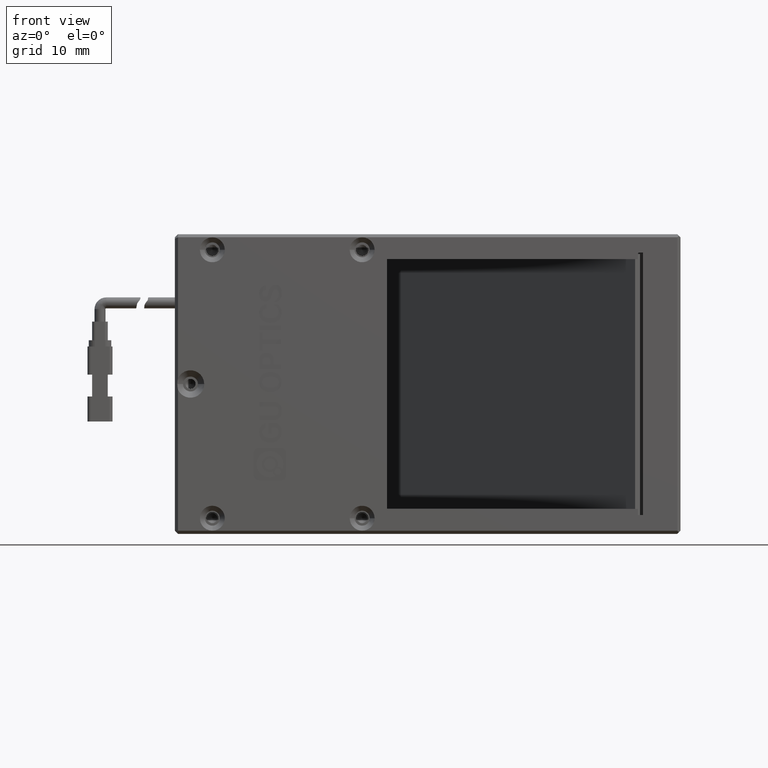
[diagram: clean part render]
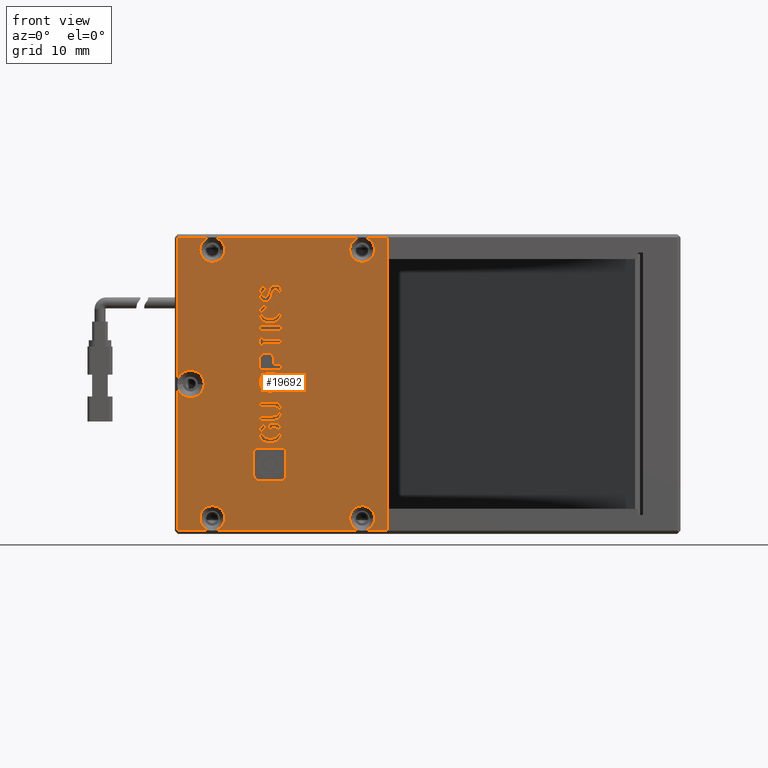
[diagram: same view with one face highlighted and labeled with its STEP entity id]
A machine part, front view. The second image highlights one B-rep face of the part: STEP entity #19692.
In plain terms, the highlighted planar face has unit normal (0, -1, 0).
Its self-contained STEP definition (entity closure, byte-faithful):
#18 = VECTOR ( 'NONE', #5556, 1000.000000000000000 ) ;
#34 = CARTESIAN_POINT ( 'NONE',  ( -31.03934184111705000, -8.252652167982001100, -0.7922482599449550700 ) ) ;
#38 = EDGE_CURVE ( 'NONE', #20925, #17543, #5206, .T. ) ;
#68 = VERTEX_POINT ( 'NONE', #14120 ) ;
#79 = EDGE_CURVE ( 'NONE', #17939, #3941, #9983, .T. ) ;
#108 = VECTOR ( 'NONE', #15790, 1000.000000000000000 ) ;
#124 = ORIENTED_EDGE ( 'NONE', *, *, #5368, .F. ) ;
#125 = CARTESIAN_POINT ( 'NONE',  ( -29.87283291737444600, -8.252652167982001100, -11.03802976346035300 ) ) ;
#140 = ORIENTED_EDGE ( 'NONE', *, *, #8010, .F. ) ;
#142 = ORIENTED_EDGE ( 'NONE', *, *, #15332, .F. ) ;
#163 = CARTESIAN_POINT ( 'NONE',  ( -27.29090188148201100, -8.252652167982001100, -39.50000000000009900 ) ) ;
#215 = ORIENTED_EDGE ( 'NONE', *, *, #9650, .T. ) ;
#234 = B_SPLINE_CURVE_WITH_KNOTS ( 'NONE', 3,
 ( #9976, #9885, #14482, #1011 ),
 .UNSPECIFIED., .F., .F.,
 ( 4, 4 ),
 ( 11.00000000000000000, 12.00000000000000000 ),
 .UNSPECIFIED. ) ;
#267 = DIRECTION ( 'NONE',  ( -1.000000000000000000, -0.0000000000000000000, -2.599063047630901900E-015 ) ) ;
#359 = CARTESIAN_POINT ( 'NONE',  ( -27.91934454528144400, -8.252652167982001100, -4.477375355672380800 ) ) ;
#411 = B_SPLINE_CURVE_WITH_KNOTS ( 'NONE', 3,
 ( #2615, #16053, #18294, #4915 ),
 .UNSPECIFIED., .F., .F.,
 ( 4, 4 ),
 ( 2.000000000000000000, 3.000000000000000000 ),
 .UNSPECIFIED. ) ;
#496 = DIRECTION ( 'NONE',  ( 0.0000000000000000000, 0.0000000000000000000, 1.000000000000000000 ) ) ;
#514 = ORIENTED_EDGE ( 'NONE', *, *, #16821, .F. ) ;
#623 = B_SPLINE_CURVE_WITH_KNOTS ( 'NONE', 3,
 ( #6550, #17678, #8802, #24517 ),
 .UNSPECIFIED., .F., .F.,
 ( 4, 4 ),
 ( 2.000000000000000000, 3.000000000000000000 ),
 .UNSPECIFIED. ) ;
#635 = AXIS2_PLACEMENT_3D ( 'NONE', #20508, #7075, #22776 ) ;
#641 = FACE_BOUND ( 'NONE', #19643, .T. ) ;
#657 = EDGE_CURVE ( 'NONE', #23110, #12492, #9761, .T. ) ;
#704 = CARTESIAN_POINT ( 'NONE',  ( -30.55655384760699900, -8.252652167982001100, -4.629281791583844500 ) ) ;
#711 = CIRCLE ( 'NONE', #4725, 1.999999999992401900 ) ;
#729 = CARTESIAN_POINT ( 'NONE',  ( -29.53097245225810100, -8.252652167982001100, -22.30645864393654400 ) ) ;
#742 = DIRECTION ( 'NONE',  ( 3.614007241615830800E-016, 1.000000000000000000, 3.134651602188403300E-030 ) ) ;
#811 = B_SPLINE_CURVE_WITH_KNOTS ( 'NONE', 3,
 ( #23311, #7650, #3001, #9879 ),
 .UNSPECIFIED., .F., .F.,
 ( 4, 4 ),
 ( 9.000000000000000000, 10.00000000000000000 ),
 .UNSPECIFIED. ) ;
#903 = CARTESIAN_POINT ( 'NONE',  ( -28.41841160855883400, -8.252652167982001100, -24.66039320315771000 ) ) ;
#924 = CARTESIAN_POINT ( 'NONE',  ( -27.51236780109535800, -8.252652167982001100, -14.68283776778722000 ) ) ;
#1011 = CARTESIAN_POINT ( 'NONE',  ( -29.59608873132797400, -8.252652167982001100, -1.470479736418783800 ) ) ;
#1047 = EDGE_CURVE ( 'NONE', #15351, #10527, #15290, .T. ) ;
#1051 = DIRECTION ( 'NONE',  ( 3.614007241625704900E-016, 1.000000000000000000, 5.224419337009214800E-031 ) ) ;
#1084 = CARTESIAN_POINT ( 'NONE',  ( -31.94052115306150700, -8.252652167982001100, -27.20915434794602600 ) ) ;
#1116 = CARTESIAN_POINT ( 'NONE',  ( -26.72072568598852300, -8.252652167982001100, -26.58112206540497300 ) ) ;
#1154 = VERTEX_POINT ( 'NONE', #3552 ) ;
#1188 = EDGE_CURVE ( 'NONE', #28589, #27497, #9674, .T. ) ;
#1215 = B_SPLINE_CURVE_WITH_KNOTS ( 'NONE', 3,
 ( #11891, #18517, #16350, #2923 ),
 .UNSPECIFIED., .F., .F.,
 ( 4, 4 ),
 ( 9.000000000000000000, 10.00000000000000000 ),
 .UNSPECIFIED. ) ;
#1228 = LINE ( 'NONE', #15214, #13204 ) ;
#1313 = VERTEX_POINT ( 'NONE', #21800 ) ;
#1321 = CARTESIAN_POINT ( 'NONE',  ( -38.54090188148040900, -8.252652167982072100, 7.499999999995097300 ) ) ;
#1327 = CARTESIAN_POINT ( 'NONE',  ( -28.09841431272331400, -8.252652167982001100, -2.867640363784723900 ) ) ;
#1356 = FACE_BOUND ( 'NONE', #22698, .T. ) ;
#1450 = CARTESIAN_POINT ( 'NONE',  ( -28.81469338249070900, -8.252652167982001100, -19.61842457146478600 ) ) ;
#1475 = AXIS2_PLACEMENT_3D ( 'NONE', #23410, #9962, #25709 ) ;
#1492 = VECTOR ( 'NONE', #2658, 1000.000000000000000 ) ;
#1504 = CARTESIAN_POINT ( 'NONE',  ( -38.54090188148014600, -8.252652167982059700, -39.49999999999624800 ) ) ;
#1505 = CARTESIAN_POINT ( 'NONE',  ( -30.10073989411866100, -8.252652167982001100, -2.791639822952054000 ) ) ;
#1526 = ORIENTED_EDGE ( 'NONE', *, *, #20028, .F. ) ;
#1599 = EDGE_CURVE ( 'NONE', #19523, #4336, #811, .T. ) ;
#1631 = EDGE_CURVE ( 'NONE', #15797, #29181, #12846, .T. ) ;
#1666 = CARTESIAN_POINT ( 'NONE',  ( -28.99376314993256500, -8.252652167982001100, -21.83569066124313100 ) ) ;
#1733 = CARTESIAN_POINT ( 'NONE',  ( -27.51236780109538000, -8.252652167982001100, -8.881526248046826700 ) ) ;
#1751 = DIRECTION ( 'NONE',  ( -0.0000000000000000000, -0.0000000000000000000, 1.000000000000000000 ) ) ;
#1758 = CARTESIAN_POINT ( 'NONE',  ( -14.54090188148173000, -8.252652167982059700, 7.499999999995100800 ) ) ;
#1782 = DIRECTION ( 'NONE',  ( 1.000000000000000000, -0.0000000000000000000, -0.0000000000000000000 ) ) ;
#1834 = CARTESIAN_POINT ( 'NONE',  ( -31.01236780109534100, -8.252652167982001100, -21.10672906037769500 ) ) ;
#1933 = CARTESIAN_POINT ( 'NONE',  ( -29.25422826621165100, -8.252652167982001100, -6.239016783471383200 ) ) ;
#1944 = DIRECTION ( 'NONE',  ( -0.0000000000000000000, -0.0000000000000000000, 1.000000000000000000 ) ) ;
#1969 = CARTESIAN_POINT ( 'NONE',  ( -30.98886423748356800, -8.252652167982001100, -26.25753550974674500 ) ) ;
#1981 = EDGE_CURVE ( 'NONE', #17543, #23246, #24046, .T. ) ;
#2064 = VERTEX_POINT ( 'NONE', #9218 ) ;
#2076 = EDGE_CURVE ( 'NONE', #13261, #24456, #11755, .T. ) ;
#2089 = EDGE_CURVE ( 'NONE', #18562, #14603, #28284, .T. ) ;
#2098 = CARTESIAN_POINT ( 'NONE',  ( -27.91934454528137300, -8.252652167982001100, -23.73400055848473000 ) ) ;
#2117 = B_SPLINE_CURVE_WITH_KNOTS ( 'NONE', 3,
 ( #4418, #24539, #6665, #22358 ),
 .UNSPECIFIED., .F., .F.,
 ( 4, 4 ),
 ( 1.000000000000000000, 2.000000000000000000 ),
 .UNSPECIFIED. ) ;
#2121 = CARTESIAN_POINT ( 'NONE',  ( -30.52399570807210700, -8.252652167982001100, -10.68869228374158800 ) ) ;
#2247 = ORIENTED_EDGE ( 'NONE', *, *, #21335, .T. ) ;
#2249 = CIRCLE ( 'NONE', #5410, 2.000000000000119900 ) ;
#2276 = VERTEX_POINT ( 'NONE', #25750 ) ;
#2310 = CARTESIAN_POINT ( 'NONE',  ( -28.72236644901322900, -8.252652167982001100, -0.8781866049964969200 ) ) ;
#2311 = B_SPLINE_CURVE_WITH_KNOTS ( 'NONE', 3,
 ( #3490, #10169, #5749, #21439 ),
 .UNSPECIFIED., .F., .F.,
 ( 4, 4 ),
 ( 12.00000000000000000, 13.00000000000000000 ),
 .UNSPECIFIED. ) ;
#2345 = ORIENTED_EDGE ( 'NONE', *, *, #24219, .F. ) ;
#2350 = DIRECTION ( 'NONE',  ( 1.000000000000000000, -0.0000000000000000000, -0.0000000000000000000 ) ) ;
#2514 = VERTEX_POINT ( 'NONE', #19911 ) ;
#2519 = CARTESIAN_POINT ( 'NONE',  ( -27.44725152202561000, -8.252652167982001100, -0.5694521539416561600 ) ) ;
#2583 = DIRECTION ( 'NONE',  ( 3.614007241625517100E-016, 1.000000000000000000, 0.0000000000000000000 ) ) ;
#2615 = CARTESIAN_POINT ( 'NONE',  ( -29.25422826621158700, -8.252652167982001100, -24.69077449034007200 ) ) ;
#2619 = ORIENTED_EDGE ( 'NONE', *, *, #15420, .F. ) ;
#2658 = DIRECTION ( 'NONE',  ( 2.092251592271780700E-015, -0.0000000000000000000, -1.000000000000000000 ) ) ;
#2703 = CARTESIAN_POINT ( 'NONE',  ( -31.06120501039767800, -8.252652167982001100, -15.71551759472056600 ) ) ;
#2712 = B_SPLINE_CURVE_WITH_KNOTS ( 'NONE', 3,
 ( #22376, #6679, #8917, #24643 ),
 .UNSPECIFIED., .F., .F.,
 ( 4, 4 ),
 ( 3.000000000000000000, 4.000000000000000000 ),
 .UNSPECIFIED. ) ;
#2777 = CARTESIAN_POINT ( 'NONE',  ( -28.21771528622240800, -8.252652167982001100, -21.10672906037769500 ) ) ;
#2809 = CARTESIAN_POINT ( 'NONE',  ( -38.54090188147999600, -8.252652167982116500, 5.499999999995000400 ) ) ;
#2824 = CARTESIAN_POINT ( 'NONE',  ( -27.44725152202559600, -8.252652167982001100, -4.644425112297671600 ) ) ;
#2847 = CARTESIAN_POINT ( 'NONE',  ( -31.01236780109533300, -8.252652167982001100, -21.83569066124313800 ) ) ;
#2923 = CARTESIAN_POINT ( 'NONE',  ( -31.06120501039771800, -8.252652167982001100, -4.674806399479930300 ) ) ;
#2934 = VERTEX_POINT ( 'NONE', #15353 ) ;
#2938 = EDGE_CURVE ( 'NONE', #21237, #19523, #9500, .T. ) ;
#3001 = CARTESIAN_POINT ( 'NONE',  ( -30.55655384760700600, -8.252652167982001100, -1.890706886229502000 ) ) ;
#3006 = ORIENTED_EDGE ( 'NONE', *, *, #13647, .F. ) ;
#3010 = VERTEX_POINT ( 'NONE', #1969 ) ;
#3045 = ORIENTED_EDGE ( 'NONE', *, *, #9764, .F. ) ;
#3166 = CARTESIAN_POINT ( 'NONE',  ( -27.96259765507053200, -8.252652167982001100, -5.135636577954677800 ) ) ;
#3200 = CARTESIAN_POINT ( 'NONE',  ( -28.73329803365345800, -8.252652167982001100, -12.92119633998822400 ) ) ;
#3269 = DIRECTION ( 'NONE',  ( 1.000000000000000000, -0.0000000000000000000, -0.0000000000000000000 ) ) ;
#3277 = LINE ( 'NONE', #26475, #14508 ) ;
#3283 = CARTESIAN_POINT ( 'NONE',  ( -29.02632128946747900, -8.252652167982001100, -18.88946297059956700 ) ) ;
#3334 = VERTEX_POINT ( 'NONE', #5824 ) ;
#3368 = ORIENTED_EDGE ( 'NONE', *, *, #9686, .F. ) ;
#3391 = CARTESIAN_POINT ( 'NONE',  ( -28.81469338249070600, -8.252652167982001100, -21.10672906037769200 ) ) ;
#3392 = ORIENTED_EDGE ( 'NONE', *, *, #18538, .F. ) ;
#3411 = CARTESIAN_POINT ( 'NONE',  ( -31.94052115306150000, -8.252652167982001100, -30.52562638674750100 ) ) ;
#3432 = VECTOR ( 'NONE', #267, 1000.000000000000000 ) ;
#3434 = CARTESIAN_POINT ( 'NONE',  ( -27.67239211490133500, -8.252652167982001100, -26.25753550974673800 ) ) ;
#3441 = CARTESIAN_POINT ( 'NONE',  ( -29.02632128946747900, -8.252652167982001100, -18.88946297059956700 ) ) ;
#3443 = CARTESIAN_POINT ( 'NONE',  ( -14.54090188148000000, -8.252652167982118300, -37.50000000000000000 ) ) ;
#3449 = CARTESIAN_POINT ( 'NONE',  ( -28.18515714668762900, -8.252652167982001100, -2.493127113379229000 ) ) ;
#3490 = CARTESIAN_POINT ( 'NONE',  ( -31.06120501039765000, -8.252652167982001100, -23.79476313284923400 ) ) ;
#3552 = CARTESIAN_POINT ( 'NONE',  ( -28.70073989411864800, -8.252652167982001100, -3.308027059295889100 ) ) ;
#3554 = VECTOR ( 'NONE', #6019, 1000.000000000000000 ) ;
#3568 = EDGE_CURVE ( 'NONE', #24479, #28096, #2712, .T. ) ;
#3621 = VERTEX_POINT ( 'NONE', #13549 ) ;
#3671 = EDGE_CURVE ( 'NONE', #68, #6087, #411, .T. ) ;
#3683 = ORIENTED_EDGE ( 'NONE', *, *, #21419, .F. ) ;
#3702 = VECTOR ( 'NONE', #12606, 1000.000000000000000 ) ;
#3720 = ORIENTED_EDGE ( 'NONE', *, *, #20296, .T. ) ;
#3763 = ORIENTED_EDGE ( 'NONE', *, *, #10447, .F. ) ;
#3829 = ORIENTED_EDGE ( 'NONE', *, *, #6103, .T. ) ;
#3883 = DIRECTION ( 'NONE',  ( 1.000000000000000000, -0.0000000000000000000, 3.469446951953615000E-015 ) ) ;
#3903 = EDGE_CURVE ( 'NONE', #5767, #23133, #25127, .T. ) ;
#3941 = VERTEX_POINT ( 'NONE', #6074 ) ;
#3943 = CARTESIAN_POINT ( 'NONE',  ( -31.01236780109537600, -8.252652167982001100, -10.68869228374158800 ) ) ;
#3960 = CARTESIAN_POINT ( 'NONE',  ( -27.29090188148200700, -8.252652167982001100, 7.499999999995101700 ) ) ;
#3972 = CARTESIAN_POINT ( 'NONE',  ( -30.71934454528137700, -8.252652167982001100, -22.54449271640801900 ) ) ;
#3987 = CARTESIAN_POINT ( 'NONE',  ( -27.44725152202560600, -8.252652167982001100, -1.470479736418776900 ) ) ;
#4050 = ORIENTED_EDGE ( 'NONE', *, *, #24984, .F. ) ;
#4062 = VERTEX_POINT ( 'NONE', #125 ) ;
#4101 = VECTOR ( 'NONE', #20997, 1000.000000000000000 ) ;
#4117 = DIRECTION ( 'NONE',  ( -4.569581803014800800E-015, -0.0000000000000000000, 1.000000000000000000 ) ) ;
#4133 = VERTEX_POINT ( 'NONE', #9498 ) ;
#4181 = CARTESIAN_POINT ( 'NONE',  ( -44.04090188148008900, -8.252652167982001100, -16.00000000000249800 ) ) ;
#4235 = CIRCLE ( 'NONE', #15800, 1.999999999992396700 ) ;
#4242 = CARTESIAN_POINT ( 'NONE',  ( -27.50167283084120100, -8.252652167982001100, -5.656945393530669700 ) ) ;
#4248 = CIRCLE ( 'NONE', #5910, 1.999999999992401900 ) ;
#4278 = ORIENTED_EDGE ( 'NONE', *, *, #13239, .F. ) ;
#4336 = VERTEX_POINT ( 'NONE', #8325 ) ;
#4353 = EDGE_CURVE ( 'NONE', #14603, #13261, #20587, .T. ) ;
#4418 = CARTESIAN_POINT ( 'NONE',  ( -30.57283291737437700, -8.252652167982001100, -23.79476313284922600 ) ) ;
#4425 = B_SPLINE_CURVE_WITH_KNOTS ( 'NONE', 3,
 ( #11357, #9105, #34, #27081 ),
 .UNSPECIFIED., .F., .F.,
 ( 4, 4 ),
 ( 6.000000000000000000, 7.000000000000000000 ),
 .UNSPECIFIED. ) ;
#4455 = CARTESIAN_POINT ( 'NONE',  ( -44.04090188148379100, -8.252652167982002900, -39.50000000000378700 ) ) ;
#4461 = EDGE_CURVE ( 'NONE', #25198, #24824, #16039, .T. ) ;
#4514 = ORIENTED_EDGE ( 'NONE', *, *, #24949, .F. ) ;
#4612 = CARTESIAN_POINT ( 'NONE',  ( -28.90143621645509200, -8.252652167982001100, -1.085744744531045700 ) ) ;
#4652 = LINE ( 'NONE', #3960, #15834 ) ;
#4685 = VERTEX_POINT ( 'NONE', #12130 ) ;
#4693 = DIRECTION ( 'NONE',  ( 9.518874376471022100E-015, -0.0000000000000000000, -1.000000000000000000 ) ) ;
#4725 = AXIS2_PLACEMENT_3D ( 'NONE', #14530, #1051, #16766 ) ;
#4750 = VERTEX_POINT ( 'NONE', #5451 ) ;
#4834 = CARTESIAN_POINT ( 'NONE',  ( -27.79469608665515100, -8.252652167982001100, -0.1240492334442172800 ) ) ;
#4915 = CARTESIAN_POINT ( 'NONE',  ( -30.57283291737437700, -8.252652167982001100, -23.79476313284922600 ) ) ;
#4989 = ORIENTED_EDGE ( 'NONE', *, *, #19215, .F. ) ;
#4990 = CARTESIAN_POINT ( 'NONE',  ( -28.73329803365345800, -8.252652167982001100, -12.92119633998822400 ) ) ;
#5026 = EDGE_CURVE ( 'NONE', #15351, #13111, #15781, .T. ) ;
#5069 = CARTESIAN_POINT ( 'NONE',  ( -12.54090188147988300, -8.252652167982116500, 5.499999999995000400 ) ) ;
#5071 = ORIENTED_EDGE ( 'NONE', *, *, #17574, .F. ) ;
#5094 = DIRECTION ( 'NONE',  ( 1.000000000000000000, 0.0000000000000000000, 1.734723475976703200E-015 ) ) ;
#5096 = ORIENTED_EDGE ( 'NONE', *, *, #18114, .F. ) ;
#5154 = ORIENTED_EDGE ( 'NONE', *, *, #79, .F. ) ;
#5184 = EDGE_CURVE ( 'NONE', #6661, #27251, #11236, .T. ) ;
#5206 = B_SPLINE_CURVE_WITH_KNOTS ( 'NONE', 3,
 ( #12236, #8013, #2777, #3391 ),
 .UNSPECIFIED., .F., .F.,
 ( 4, 4 ),
 ( 3.000000000000000000, 4.000000000000000000 ),
 .UNSPECIFIED. ) ;
#5221 = EDGE_CURVE ( 'NONE', #27251, #7056, #23170, .T. ) ;
#5286 = CARTESIAN_POINT ( 'NONE',  ( -29.51469338249074800, -8.252652167982001100, -2.862624138798342000 ) ) ;
#5308 = CARTESIAN_POINT ( 'NONE',  ( -42.04090188148000400, -8.252652167982164500, -16.00000000000000000 ) ) ;
#5368 = EDGE_CURVE ( 'NONE', #19889, #18562, #9306, .T. ) ;
#5410 = AXIS2_PLACEMENT_3D ( 'NONE', #2809, #18497, #5094 ) ;
#5415 = LINE ( 'NONE', #163, #11368 ) ;
#5448 = ORIENTED_EDGE ( 'NONE', *, *, #5184, .T. ) ;
#5451 = CARTESIAN_POINT ( 'NONE',  ( -31.01236780109536900, -8.252652167982001100, -12.22261602630525900 ) ) ;
#5491 = CARTESIAN_POINT ( 'NONE',  ( -29.23794919644420200, -8.252652167982001100, -14.09054463636461000 ) ) ;
#5513 = ORIENTED_EDGE ( 'NONE', *, *, #23792, .F. ) ;
#5556 = DIRECTION ( 'NONE',  ( 4.913173197129758300E-015, -0.0000000000000000000, -1.000000000000000000 ) ) ;
#5674 = CARTESIAN_POINT ( 'NONE',  ( -30.79854997837021500, -8.252652167982001100, -31.47733084495652600 ) ) ;
#5706 = DIRECTION ( 'NONE',  ( 1.000000000000000000, 0.0000000000000000000, 0.0000000000000000000 ) ) ;
#5749 = CARTESIAN_POINT ( 'NONE',  ( -30.41004221969998900, -8.252652167982001100, -25.37941699980439500 ) ) ;
#5767 = VERTEX_POINT ( 'NONE', #704 ) ;
#5811 = EDGE_CURVE ( 'NONE', #24456, #21237, #234, .T. ) ;
#5824 = CARTESIAN_POINT ( 'NONE',  ( -31.01236780109538700, -8.252652167982001100, -7.803321813217197100 ) ) ;
#5910 = AXIS2_PLACEMENT_3D ( 'NONE', #3443, #19119, #5706 ) ;
#5937 = CARTESIAN_POINT ( 'NONE',  ( -29.90539105690937300, -8.252652167982001100, -3.232026518463217500 ) ) ;
#5973 = FACE_BOUND ( 'NONE', #9183, .T. ) ;
#5993 = CARTESIAN_POINT ( 'NONE',  ( -31.05027342575737100, -8.252652167982001100, -2.351253127440894100 ) ) ;
#6019 = DIRECTION ( 'NONE',  ( -4.860406420550604700E-015, -0.0000000000000000000, 1.000000000000000000 ) ) ;
#6038 = LINE ( 'NONE', #16681, #17906 ) ;
#6047 = ORIENTED_EDGE ( 'NONE', *, *, #28688, .F. ) ;
#6074 = CARTESIAN_POINT ( 'NONE',  ( -30.52399570807211000, -8.252652167982001100, -9.610487848911834200 ) ) ;
#6087 = VERTEX_POINT ( 'NONE', #15358 ) ;
#6103 = EDGE_CURVE ( 'NONE', #11757, #28505, #6935, .T. ) ;
#6145 = EDGE_CURVE ( 'NONE', #20253, #25202, #24932, .T. ) ;
#6232 = DIRECTION ( 'NONE',  ( -1.000000000000000000, 0.0000000000000000000, 0.0000000000000000000 ) ) ;
#6412 = CARTESIAN_POINT ( 'NONE',  ( -29.59608873132797400, -8.252652167982001100, -1.470479736418783800 ) ) ;
#6433 = CARTESIAN_POINT ( 'NONE',  ( -27.51236780109536200, -8.252652167982001100, -13.63491997438525500 ) ) ;
#6494 = EDGE_LOOP ( 'NONE', ( #9586, #23732, #3720, #2247, #8703, #18447, #22301, #11992, #3829, #12361, #9993, #215, #9253, #23972, #14222, #21560, #5448, #17777, #13533, #25502, #15126, #21051 ) ) ;
#6537 = LINE ( 'NONE', #26536, #17725 ) ;
#6550 = CARTESIAN_POINT ( 'NONE',  ( -28.44027477783957300, -8.252652167982001100, -0.8781866049964969200 ) ) ;
#6640 = CARTESIAN_POINT ( 'NONE',  ( -27.44725152202559600, -8.252652167982001100, -4.047210401643345900 ) ) ;
#6656 = FACE_BOUND ( 'NONE', #26299, .T. ) ;
#6661 = VERTEX_POINT ( 'NONE', #13989 ) ;
#6665 = CARTESIAN_POINT ( 'NONE',  ( -30.39376314993254600, -8.252652167982001100, -23.19253219720840800 ) ) ;
#6667 = DIRECTION ( 'NONE',  ( 0.0000000000000000000, 1.000000000000000000, 0.0000000000000000000 ) ) ;
#6668 = B_SPLINE_CURVE_WITH_KNOTS ( 'NONE', 3,
 ( #20300, #4612, #2310, #6853 ),
 .UNSPECIFIED., .F., .F.,
 ( 4, 4 ),
 ( 3.000000000000000000, 4.000000000000000000 ),
 .UNSPECIFIED. ) ;
#6679 = CARTESIAN_POINT ( 'NONE',  ( -30.38817905041931400, -8.252652167982001100, -14.16152895221090300 ) ) ;
#6720 = LINE ( 'NONE', #17503, #26751 ) ;
#6738 = LINE ( 'NONE', #21228, #12007 ) ;
#6754 = EDGE_CURVE ( 'NONE', #3010, #7942, #20389, .T. ) ;
#6848 = EDGE_CURVE ( 'NONE', #14875, #8293, #16269, .T. ) ;
#6853 = CARTESIAN_POINT ( 'NONE',  ( -28.44027477783957300, -8.252652167982001100, -0.8781866049964969200 ) ) ;
#6881 = ORIENTED_EDGE ( 'NONE', *, *, #19299, .F. ) ;
#6905 = CARTESIAN_POINT ( 'NONE',  ( -31.01236780109534100, -8.252652167982001100, -21.10672906037769500 ) ) ;
#6910 = ORIENTED_EDGE ( 'NONE', *, *, #2089, .F. ) ;
#6935 = LINE ( 'NONE', #4181, #24152 ) ;
#6967 = EDGE_CURVE ( 'NONE', #23987, #3010, #28630, .T. ) ;
#7056 = VERTEX_POINT ( 'NONE', #29020 ) ;
#7075 = DIRECTION ( 'NONE',  ( -3.614007241615833300E-016, -1.000000000000000000, -0.0000000000000000000 ) ) ;
#7085 = CARTESIAN_POINT ( 'NONE',  ( -27.29090188148200700, -8.252652167982001100, 7.499999999995101700 ) ) ;
#7124 = VERTEX_POINT ( 'NONE', #26934 ) ;
#7147 = LINE ( 'NONE', #22957, #24373 ) ;
#7169 = VERTEX_POINT ( 'NONE', #11598 ) ;
#7176 = CARTESIAN_POINT ( 'NONE',  ( -10.54090188148391900, -8.252652167982001100, -16.00000000000249800 ) ) ;
#7212 = VERTEX_POINT ( 'NONE', #18425 ) ;
#7325 = EDGE_CURVE ( 'NONE', #6661, #10197, #711, .T. ) ;
#7398 = DIRECTION ( 'NONE',  ( -1.000000000000000000, -0.0000000000000000000, -3.552052831761927200E-015 ) ) ;
#7509 = CARTESIAN_POINT ( 'NONE',  ( -31.01236780109534800, -8.252652167982001100, -18.88946297059957000 ) ) ;
#7514 = CIRCLE ( 'NONE', #25984, 2.199999999992388500 ) ;
#7560 = DIRECTION ( 'NONE',  ( 1.000000000000000000, 0.0000000000000000000, 0.0000000000000000000 ) ) ;
#7592 = ORIENTED_EDGE ( 'NONE', *, *, #28409, .F. ) ;
#7628 = ORIENTED_EDGE ( 'NONE', *, *, #16425, .F. ) ;
#7650 = CARTESIAN_POINT ( 'NONE',  ( -30.40445812018677800, -8.252652167982001100, -2.057756642854794600 ) ) ;
#7674 = CARTESIAN_POINT ( 'NONE',  ( -26.72072568598851900, -8.252652167982001100, -27.20915434794601100 ) ) ;
#7678 = LINE ( 'NONE', #21922, #18113 ) ;
#7680 = CARTESIAN_POINT ( 'NONE',  ( -30.33934184111700100, -8.252652167982001100, -4.047210401643355700 ) ) ;
#7704 = CARTESIAN_POINT ( 'NONE',  ( -29.97050733597912900, -8.252652167982001100, -0.2251308992093923000 ) ) ;
#7722 = EDGE_CURVE ( 'NONE', #20906, #11757, #21065, .T. ) ;
#7761 = CARTESIAN_POINT ( 'NONE',  ( -30.55655384760699900, -8.252652167982001100, -4.274928086878576400 ) ) ;
#7838 = VERTEX_POINT ( 'NONE', #20482 ) ;
#7879 = LINE ( 'NONE', #9531, #12432 ) ;
#7942 = VERTEX_POINT ( 'NONE', #20872 ) ;
#8010 = EDGE_CURVE ( 'NONE', #7212, #7169, #15092, .T. ) ;
#8013 = CARTESIAN_POINT ( 'NONE',  ( -27.91934454528138700, -8.252652167982001100, -20.85875718368756900 ) ) ;
#8018 = CARTESIAN_POINT ( 'NONE',  ( -29.22167012667680900, -8.252652167982001100, -5.494911861891880600 ) ) ;
#8197 = ORIENTED_EDGE ( 'NONE', *, *, #24547, .F. ) ;
#8213 = LINE ( 'NONE', #27339, #1492 ) ;
#8221 = CARTESIAN_POINT ( 'NONE',  ( -31.01236780109537600, -8.252652167982001100, -10.68869228374158800 ) ) ;
#8293 = VERTEX_POINT ( 'NONE', #6433 ) ;
#8299 = VERTEX_POINT ( 'NONE', #28946 ) ;
#8325 = CARTESIAN_POINT ( 'NONE',  ( -30.55655384760701000, -8.252652167982001100, -1.546385631497119400 ) ) ;
#8366 = VECTOR ( 'NONE', #12826, 1000.000000000000000 ) ;
#8442 = VECTOR ( 'NONE', #11972, 1000.000000000000000 ) ;
#8451 = LINE ( 'NONE', #26929, #20384 ) ;
#8493 = ORIENTED_EDGE ( 'NONE', *, *, #17768, .F. ) ;
#8524 = B_SPLINE_CURVE_WITH_KNOTS ( 'NONE', 3,
 ( #24278, #26447, #28831, #15343 ),
 .UNSPECIFIED., .F., .F.,
 ( 4, 4 ),
 ( 10.00000000000000000, 11.00000000000000000 ),
 .UNSPECIFIED. ) ;
#8689 = CARTESIAN_POINT ( 'NONE',  ( -29.66120501039771200, -8.252652167982001100, -1.875468919760980800 ) ) ;
#8703 = ORIENTED_EDGE ( 'NONE', *, *, #21519, .T. ) ;
#8725 = CARTESIAN_POINT ( 'NONE',  ( -28.81469338249070900, -8.252652167982001100, -19.61842457146478600 ) ) ;
#8735 = EDGE_CURVE ( 'NONE', #2276, #20253, #2311, .T. ) ;
#8754 = ORIENTED_EDGE ( 'NONE', *, *, #27216, .F. ) ;
#8769 = CARTESIAN_POINT ( 'NONE',  ( -27.29090188148200700, -8.252652167982001100, 7.499999999995101700 ) ) ;
#8778 = CARTESIAN_POINT ( 'NONE',  ( -27.51236780109536200, -8.252652167982001100, -12.92119633998822100 ) ) ;
#8785 = CARTESIAN_POINT ( 'NONE',  ( -28.09841431272323600, -8.252652167982001100, -25.37941699980438800 ) ) ;
#8796 = CARTESIAN_POINT ( 'NONE',  ( -27.64260035923494000, -8.252652167982001100, -3.601807481145684200 ) ) ;
#8797 = CARTESIAN_POINT ( 'NONE',  ( -27.04426468314831700, -8.252652167982001100, -31.47733084495651900 ) ) ;
#8802 = CARTESIAN_POINT ( 'NONE',  ( -27.90306547551398000, -8.252652167982001100, -1.121142256700008900 ) ) ;
#8844 = AXIS2_PLACEMENT_3D ( 'NONE', #25683, #12219, #27936 ) ;
#8900 = B_SPLINE_CURVE_WITH_KNOTS ( 'NONE', 3,
 ( #28976, #29086, #24631, #11178 ),
 .UNSPECIFIED., .F., .F.,
 ( 4, 4 ),
 ( 4.000000000000000000, 5.000000000000000000 ),
 .UNSPECIFIED. ) ;
#8917 = CARTESIAN_POINT ( 'NONE',  ( -30.99608873132791200, -8.252652167982001100, -14.70318660499648000 ) ) ;
#9014 = VECTOR ( 'NONE', #22572, 1000.000000000000000 ) ;
#9037 = VERTEX_POINT ( 'NONE', #11817 ) ;
#9077 = EDGE_CURVE ( 'NONE', #13910, #18379, #26993, .T. ) ;
#9089 = EDGE_CURVE ( 'NONE', #17951, #17001, #24730, .T. ) ;
#9088 = CARTESIAN_POINT ( 'NONE',  ( -31.01236780109534100, -8.252652167982001100, -19.61842457146478900 ) ) ;
#9105 = CARTESIAN_POINT ( 'NONE',  ( -30.67585482110622800, -8.252652167982001100, -0.3466560479384907000 ) ) ;
#9141 = VECTOR ( 'NONE', #17750, 1000.000000000000000 ) ;
#9183 = EDGE_LOOP ( 'NONE', ( #142, #3368, #4514, #26924, #12162, #8493, #14951, #514, #5096, #25778 ) ) ;
#9212 = CARTESIAN_POINT ( 'NONE',  ( -31.06120501039771800, -8.252652167982001100, -4.674806399479930300 ) ) ;
#9218 = CARTESIAN_POINT ( 'NONE',  ( -29.97050733597912900, -8.252652167982001100, -0.9237112128924769300 ) ) ;
#9235 = VECTOR ( 'NONE', #7398, 1000.000000000000000 ) ;
#9253 = ORIENTED_EDGE ( 'NONE', *, *, #18465, .T. ) ;
#9306 = B_SPLINE_CURVE_WITH_KNOTS ( 'NONE', 3,
 ( #21398, #19133, #3449, #23652 ),
 .UNSPECIFIED., .F., .F.,
 ( 4, 4 ),
 ( 1.000000000000000000, 2.000000000000000000 ),
 .UNSPECIFIED. ) ;
#9439 = CARTESIAN_POINT ( 'NONE',  ( -27.67239211490131700, -8.252652167982001100, -31.47733084495651200 ) ) ;
#9474 = EDGE_CURVE ( 'NONE', #27497, #7212, #17881, .T. ) ;
#9498 = CARTESIAN_POINT ( 'NONE',  ( -40.54090188148011000, -8.252652167982116500, 5.499999999995000400 ) ) ;
#9500 = B_SPLINE_CURVE_WITH_KNOTS ( 'NONE', 3,
 ( #6412, #8689, #10939, #26668 ),
 .UNSPECIFIED., .F., .F.,
 ( 4, 4 ),
 ( 10.00000000000000000, 11.00000000000000000 ),
 .UNSPECIFIED. ) ;
#9530 = CARTESIAN_POINT ( 'NONE',  ( -27.51236780109536200, -8.252652167982001100, -12.92119633998822100 ) ) ;
#9531 = CARTESIAN_POINT ( 'NONE',  ( -44.04090188148008900, -8.252652167982001100, -16.00000000000249800 ) ) ;
#9586 = ORIENTED_EDGE ( 'NONE', *, *, #5026, .T. ) ;
#9650 = EDGE_CURVE ( 'NONE', #9037, #22607, #20844, .T. ) ;
#9674 = LINE ( 'NONE', #12510, #3702 ) ;
#9679 = DIRECTION ( 'NONE',  ( 0.0000000000000000000, 1.000000000000000000, 0.0000000000000000000 ) ) ;
#9686 = EDGE_CURVE ( 'NONE', #10004, #11010, #15883, .T. ) ;
#9761 = LINE ( 'NONE', #25645, #15002 ) ;
#9764 = EDGE_CURVE ( 'NONE', #18379, #5767, #11179, .T. ) ;
#9794 = LINE ( 'NONE', #14242, #21721 ) ;
#9846 = DIRECTION ( 'NONE',  ( 1.000000000000000000, -0.0000000000000000000, 3.456051403876586300E-015 ) ) ;
#9868 = DIRECTION ( 'NONE',  ( 1.000000000000000000, -0.0000000000000000000, 3.437470482350390700E-015 ) ) ;
#9879 = CARTESIAN_POINT ( 'NONE',  ( -30.55655384760701000, -8.252652167982001100, -1.546385631497119400 ) ) ;
#9885 = CARTESIAN_POINT ( 'NONE',  ( -29.04260035923496400, -8.252652167982001100, -0.1339870376628731800 ) ) ;
#9893 = B_SPLINE_CURVE_WITH_KNOTS ( 'NONE', 3,
 ( #3411, #16808, #19079, #5674 ),
 .UNSPECIFIED., .F., .F.,
 ( 4, 4 ),
 ( 1.000000000000000000, 2.000000000000000000 ),
 .UNSPECIFIED. ) ;
#9962 = DIRECTION ( 'NONE',  ( 3.614007241615830800E-016, 1.000000000000000000, 3.134651602188403300E-030 ) ) ;
#9976 = CARTESIAN_POINT ( 'NONE',  ( -28.48911198714195000, -8.252652167982001100, -0.1339870376628714300 ) ) ;
#9983 = LINE ( 'NONE', #11787, #27192 ) ;
#9993 = ORIENTED_EDGE ( 'NONE', *, *, #10441, .T. ) ;
#10001 = CARTESIAN_POINT ( 'NONE',  ( -30.55655384760699900, -8.252652167982001100, -4.629281791583844500 ) ) ;
#10004 = VERTEX_POINT ( 'NONE', #2847 ) ;
#10015 = VERTEX_POINT ( 'NONE', #16277 ) ;
#10147 = DIRECTION ( 'NONE',  ( 1.000000000000000000, -0.0000000000000000000, 3.157380294899610300E-015 ) ) ;
#10169 = CARTESIAN_POINT ( 'NONE',  ( -31.00678370158209400, -8.252652167982001100, -24.83766470126470000 ) ) ;
#10197 = VERTEX_POINT ( 'NONE', #23668 ) ;
#10268 = DIRECTION ( 'NONE',  ( 1.000000000000000000, -0.0000000000000000000, 2.973811673103098600E-015 ) ) ;
#10306 = LINE ( 'NONE', #7704, #22216 ) ;
#10376 = CARTESIAN_POINT ( 'NONE',  ( -29.23794919644419100, -8.252652167982001100, -17.34049055307629300 ) ) ;
#10410 = CARTESIAN_POINT ( 'NONE',  ( -27.91934454528139000, -8.252652167982001100, -20.36262413879840900 ) ) ;
#10441 = EDGE_CURVE ( 'NONE', #22607, #9037, #4235, .T. ) ;
#10447 = EDGE_CURVE ( 'NONE', #1154, #13910, #8900, .T. ) ;
#10450 = CARTESIAN_POINT ( 'NONE',  ( -28.19608873132789400, -8.252652167982001100, -19.59826502576433800 ) ) ;
#10466 = CARTESIAN_POINT ( 'NONE',  ( -28.73329803365345800, -8.252652167982001100, -12.22261602630525200 ) ) ;
#10480 = EDGE_CURVE ( 'NONE', #25175, #26930, #6668, .T. ) ;
#10481 = EDGE_CURVE ( 'NONE', #20983, #26288, #4425, .T. ) ;
#10507 = DIRECTION ( 'NONE',  ( 2.404853718020528000E-015, -0.0000000000000000000, -1.000000000000000000 ) ) ;
#10517 = CARTESIAN_POINT ( 'NONE',  ( -30.10073989411866100, -8.252652167982001100, -2.791639822952054000 ) ) ;
#10527 = VERTEX_POINT ( 'NONE', #11467 ) ;
#10539 = CARTESIAN_POINT ( 'NONE',  ( -27.91934454528139000, -8.252652167982001100, -20.36262413879840900 ) ) ;
#10606 = B_SPLINE_CURVE_WITH_KNOTS ( 'NONE', 3,
 ( #1933, #15406, #4242, #19937 ),
 .UNSPECIFIED., .F., .F.,
 ( 4, 4 ),
 ( 7.000000000000000000, 8.000000000000000000 ),
 .UNSPECIFIED. ) ;
#10673 = ORIENTED_EDGE ( 'NONE', *, *, #12833, .F. ) ;
#10715 = ORIENTED_EDGE ( 'NONE', *, *, #27065, .F. ) ;
#10750 = CARTESIAN_POINT ( 'NONE',  ( -27.41469338249069300, -8.252652167982001100, -21.38006599926345100 ) ) ;
#10815 = ORIENTED_EDGE ( 'NONE', *, *, #3903, .F. ) ;
#10894 = VECTOR ( 'NONE', #10147, 1000.000000000000000 ) ;
#10920 = VERTEX_POINT ( 'NONE', #17390 ) ;
#10939 = CARTESIAN_POINT ( 'NONE',  ( -29.82934319319925000, -8.252652167982001100, -2.067978384336477400 ) ) ;
#10970 = CARTESIAN_POINT ( 'NONE',  ( -31.01236780109536900, -8.252652167982001100, -12.22261602630525900 ) ) ;
#10978 = ORIENTED_EDGE ( 'NONE', *, *, #24448, .F. ) ;
#11008 = CARTESIAN_POINT ( 'NONE',  ( -31.06120501039765000, -8.252652167982001100, -23.79476313284923400 ) ) ;
#11010 = VERTEX_POINT ( 'NONE', #15799 ) ;
#11014 = DIRECTION ( 'NONE',  ( 3.614007241625704900E-016, 1.000000000000000000, 5.224419337009214800E-031 ) ) ;
#11030 = CARTESIAN_POINT ( 'NONE',  ( -30.54562226296668100, -8.252652167982001100, -1.242667405429335400 ) ) ;
#11152 = CARTESIAN_POINT ( 'NONE',  ( -28.03329803365356900, -8.252652167982001100, -3.308027059295887400 ) ) ;
#11178 = CARTESIAN_POINT ( 'NONE',  ( -27.91934454528144400, -8.252652167982001100, -4.477375355672380800 ) ) ;
#11179 = B_SPLINE_CURVE_WITH_KNOTS ( 'NONE', 3,
 ( #8018, #23696, #25995, #12534 ),
 .UNSPECIFIED., .F., .F.,
 ( 4, 4 ),
 ( 2.000000000000000000, 3.000000000000000000 ),
 .UNSPECIFIED. ) ;
#11236 = LINE ( 'NONE', #20628, #22455 ) ;
#11332 = VERTEX_POINT ( 'NONE', #25890 ) ;
#11357 = CARTESIAN_POINT ( 'NONE',  ( -29.97050733597912900, -8.252652167982001100, -0.2251308992093923000 ) ) ;
#11365 = ORIENTED_EDGE ( 'NONE', *, *, #20207, .F. ) ;
#11366 = B_SPLINE_CURVE_WITH_KNOTS ( 'NONE', 3,
 ( #18675, #5286, #25526, #12033 ),
 .UNSPECIFIED., .F., .F.,
 ( 4, 4 ),
 ( 4.000000000000000000, 5.000000000000000000 ),
 .UNSPECIFIED. ) ;
#11368 = VECTOR ( 'NONE', #2350, 1000.000000000000000 ) ;
#11425 = VERTEX_POINT ( 'NONE', #10466 ) ;
#11467 = CARTESIAN_POINT ( 'NONE',  ( -16.54090188148011700, -8.252652167982116500, 5.499999999995000400 ) ) ;
#11477 = VECTOR ( 'NONE', #27501, 1000.000000000000000 ) ;
#11566 = EDGE_CURVE ( 'NONE', #21229, #19922, #6537, .T. ) ;
#11598 = CARTESIAN_POINT ( 'NONE',  ( -26.72072568598851600, -8.252652167982001100, -27.20915434794601900 ) ) ;
#11674 = CARTESIAN_POINT ( 'NONE',  ( -28.97748408016516200, -8.252652167982001100, -1.500766377846572300 ) ) ;
#11675 = DIRECTION ( 'NONE',  ( 1.000000000000000000, -0.0000000000000000000, 2.804252235601756300E-015 ) ) ;
#11755 = B_SPLINE_CURVE_WITH_KNOTS ( 'NONE', 3,
 ( #18201, #2519, #4834, #20502 ),
 .UNSPECIFIED., .F., .F.,
 ( 4, 4 ),
 ( 12.00000000000000000, 13.00000000000000000 ),
 .UNSPECIFIED. ) ;
#11757 = VERTEX_POINT ( 'NONE', #18349 ) ;
#11787 = CARTESIAN_POINT ( 'NONE',  ( -30.52399570807211000, -8.252652167982001100, -9.610487848911834200 ) ) ;
#11792 = CARTESIAN_POINT ( 'NONE',  ( -28.71701896388607300, -8.252652167982001100, -2.867640363784725600 ) ) ;
#11817 = CARTESIAN_POINT ( 'NONE',  ( -38.54090188147999600, -8.252652167982118300, -35.50000000000760300 ) ) ;
#11823 = ORIENTED_EDGE ( 'NONE', *, *, #24613, .F. ) ;
#11835 = ORIENTED_EDGE ( 'NONE', *, *, #3568, .F. ) ;
#11848 = CARTESIAN_POINT ( 'NONE',  ( -29.59608873132797400, -8.252652167982001100, -1.470479736418783800 ) ) ;
#11891 = CARTESIAN_POINT ( 'NONE',  ( -29.90539105690937300, -8.252652167982001100, -3.232026518463217500 ) ) ;
#11935 = FACE_BOUND ( 'NONE', #27968, .T. ) ;
#11963 = B_SPLINE_CURVE_WITH_KNOTS ( 'NONE', 3,
 ( #23544, #28109, #16839, #3441 ),
 .UNSPECIFIED., .F., .F.,
 ( 4, 4 ),
 ( 8.000000000000000000, 9.000000000000000000 ),
 .UNSPECIFIED. ) ;
#11972 = DIRECTION ( 'NONE',  ( -3.138377388407670900E-015, -0.0000000000000000000, 1.000000000000000000 ) ) ;
#11992 = ORIENTED_EDGE ( 'NONE', *, *, #7722, .T. ) ;
#12007 = VECTOR ( 'NONE', #18971, 1000.000000000000000 ) ;
#12033 = CARTESIAN_POINT ( 'NONE',  ( -28.97748408016516200, -8.252652167982001100, -1.500766377846572300 ) ) ;
#12130 = CARTESIAN_POINT ( 'NONE',  ( -29.53097245225810100, -8.252652167982001100, -22.30645864393654400 ) ) ;
#12146 = CARTESIAN_POINT ( 'NONE',  ( -27.97352923971084600, -8.252652167982001100, -24.34143701062129500 ) ) ;
#12162 = ORIENTED_EDGE ( 'NONE', *, *, #38, .F. ) ;
#12212 = VERTEX_POINT ( 'NONE', #27626 ) ;
#12216 = CARTESIAN_POINT ( 'NONE',  ( -27.44725152202555700, -8.252652167982001100, -15.71551759472055600 ) ) ;
#12219 = DIRECTION ( 'NONE',  ( -3.614007241615833300E-016, -1.000000000000000000, -0.0000000000000000000 ) ) ;
#12236 = CARTESIAN_POINT ( 'NONE',  ( -27.91934454528139000, -8.252652167982001100, -20.36262413879840900 ) ) ;
#12272 = ORIENTED_EDGE ( 'NONE', *, *, #17506, .F. ) ;
#12334 = CARTESIAN_POINT ( 'NONE',  ( -30.98886423748356800, -8.252652167982001100, -26.25753550974674500 ) ) ;
#12347 = CARTESIAN_POINT ( 'NONE',  ( -27.44725152202555700, -8.252652167982001100, -15.71551759472055600 ) ) ;
#12361 = ORIENTED_EDGE ( 'NONE', *, *, #16214, .T. ) ;
#12387 = CARTESIAN_POINT ( 'NONE',  ( -28.81469338249070900, -8.252652167982001100, -19.61842457146478600 ) ) ;
#12415 = CARTESIAN_POINT ( 'NONE',  ( -28.45655384760697300, -8.252652167982001100, -22.98989563690545200 ) ) ;
#12432 = VECTOR ( 'NONE', #16151, 1000.000000000000000 ) ;
#12442 = EDGE_CURVE ( 'NONE', #10527, #26516, #22890, .T. ) ;
#12492 = VERTEX_POINT ( 'NONE', #28798 ) ;
#12510 = CARTESIAN_POINT ( 'NONE',  ( -27.67239211490131700, -8.252652167982001100, -31.47733084495651200 ) ) ;
#12534 = CARTESIAN_POINT ( 'NONE',  ( -30.55655384760699900, -8.252652167982001100, -4.629281791583844500 ) ) ;
#12606 = DIRECTION ( 'NONE',  ( 1.000000000000000000, -0.0000000000000000000, 4.439247284977208400E-015 ) ) ;
#12646 = FACE_BOUND ( 'NONE', #22683, .T. ) ;
#12661 = CARTESIAN_POINT ( 'NONE',  ( -39.84090188148761800, -8.252652167982164500, -16.00000000000000000 ) ) ;
#12676 = B_SPLINE_CURVE_WITH_KNOTS ( 'NONE', 3,
 ( #1450, #10450, #23957, #10539 ),
 .UNSPECIFIED., .F., .F.,
 ( 4, 4 ),
 ( 4.000000000000000000, 5.000000000000000000 ),
 .UNSPECIFIED. ) ;
#12738 = EDGE_CURVE ( 'NONE', #13111, #10920, #2249, .T. ) ;
#12796 = CARTESIAN_POINT ( 'NONE',  ( -31.01236780109533300, -8.252652167982001100, -21.83569066124313800 ) ) ;
#12826 = DIRECTION ( 'NONE',  ( -1.000000000000000000, -0.0000000000000000000, -3.456051403876586300E-015 ) ) ;
#12833 = EDGE_CURVE ( 'NONE', #17001, #24479, #15467, .T. ) ;
#12846 = LINE ( 'NONE', #3200, #18028 ) ;
#12945 = ORIENTED_EDGE ( 'NONE', *, *, #29074, .F. ) ;
#12978 = CARTESIAN_POINT ( 'NONE',  ( -14.54090188148000000, -8.252652167982116500, 5.499999999995000400 ) ) ;
#13014 = DIRECTION ( 'NONE',  ( -4.759437188236961000E-015, -0.0000000000000000000, 1.000000000000000000 ) ) ;
#13111 = VERTEX_POINT ( 'NONE', #1321 ) ;
#13177 = CARTESIAN_POINT ( 'NONE',  ( -27.29090188148201100, -8.252652167982001100, -39.50000000000009900 ) ) ;
#13204 = VECTOR ( 'NONE', #1751, 1000.000000000000000 ) ;
#13222 = ORIENTED_EDGE ( 'NONE', *, *, #6967, .F. ) ;
#13237 = CARTESIAN_POINT ( 'NONE',  ( -31.06120501039773200, -8.252652167982001100, -1.561528952211182600 ) ) ;
#13239 = EDGE_CURVE ( 'NONE', #12212, #28393, #3277, .T. ) ;
#13261 = VERTEX_POINT ( 'NONE', #26578 ) ;
#13299 = CARTESIAN_POINT ( 'NONE',  ( -29.97050733597912900, -8.252652167982001100, -0.9237112128924769300 ) ) ;
#13317 = CARTESIAN_POINT ( 'NONE',  ( -26.72072568598850500, -8.252652167982001100, -30.52562638674749000 ) ) ;
#13341 = CARTESIAN_POINT ( 'NONE',  ( -28.08748272808291400, -8.252652167982001100, -23.10138833566143600 ) ) ;
#13417 = CARTESIAN_POINT ( 'NONE',  ( -27.67239211490133500, -8.252652167982001100, -26.25753550974673800 ) ) ;
#13434 = ORIENTED_EDGE ( 'NONE', *, *, #6145, .F. ) ;
#13442 = CARTESIAN_POINT ( 'NONE',  ( -28.45655384760697300, -8.252652167982001100, -22.98989563690545200 ) ) ;
#13533 = ORIENTED_EDGE ( 'NONE', *, *, #21798, .T. ) ;
#13549 = CARTESIAN_POINT ( 'NONE',  ( -27.51236780109537600, -8.252652167982001100, -9.610487848911823500 ) ) ;
#13558 = ORIENTED_EDGE ( 'NONE', *, *, #9089, .F. ) ;
#13577 = CARTESIAN_POINT ( 'NONE',  ( -31.01236780109538300, -8.252652167982001100, -7.378078438419871400 ) ) ;
#13582 = CIRCLE ( 'NONE', #22931, 2.000000000000119900 ) ;
#13601 = CARTESIAN_POINT ( 'NONE',  ( -31.01236780109536200, -8.252652167982001100, -13.63491997438526600 ) ) ;
#13610 = LINE ( 'NONE', #13177, #19586 ) ;
#13637 = EDGE_CURVE ( 'NONE', #12492, #24570, #6738, .T. ) ;
#13646 = CARTESIAN_POINT ( 'NONE',  ( -28.73329803365345800, -8.252652167982001100, -12.22261602630525200 ) ) ;
#13647 = EDGE_CURVE ( 'NONE', #4750, #14875, #23941, .T. ) ;
#13726 = CARTESIAN_POINT ( 'NONE',  ( -29.87283291737444600, -8.252652167982001100, -11.03802976346035300 ) ) ;
#13730 = CARTESIAN_POINT ( 'NONE',  ( -29.25422826621165100, -8.252652167982001100, -6.239016783471383200 ) ) ;
#13901 = ORIENTED_EDGE ( 'NONE', *, *, #4461, .F. ) ;
#13910 = VERTEX_POINT ( 'NONE', #359 ) ;
#13950 = DIRECTION ( 'NONE',  ( 1.000000000000000000, -0.0000000000000000000, -0.0000000000000000000 ) ) ;
#13984 = ORIENTED_EDGE ( 'NONE', *, *, #20626, .F. ) ;
#13987 = DIRECTION ( 'NONE',  ( 0.0000000000000000000, -1.000000000000000000, 0.0000000000000000000 ) ) ;
#13989 = CARTESIAN_POINT ( 'NONE',  ( -14.54090188148152600, -8.252652167982059700, -39.49999999999624800 ) ) ;
#14045 = DIRECTION ( 'NONE',  ( 0.0000000000000000000, 0.0000000000000000000, 1.000000000000000000 ) ) ;
#14062 = EDGE_CURVE ( 'NONE', #24029, #27953, #22816, .T. ) ;
#14120 = CARTESIAN_POINT ( 'NONE',  ( -29.25422826621158700, -8.252652167982001100, -24.69077449034007200 ) ) ;
#14222 = ORIENTED_EDGE ( 'NONE', *, *, #23656, .T. ) ;
#14236 = CARTESIAN_POINT ( 'NONE',  ( -38.54090188147999600, -8.252652167982116500, 5.499999999995000400 ) ) ;
#14242 = CARTESIAN_POINT ( 'NONE',  ( -27.51236780109537600, -8.252652167982001100, -9.610487848911823500 ) ) ;
#14329 = DIRECTION ( 'NONE',  ( -1.000000000000000000, -0.0000000000000000000, -2.664039623821596700E-015 ) ) ;
#14482 = CARTESIAN_POINT ( 'NONE',  ( -29.41143486437287900, -8.252652167982001100, -0.5796738954237934400 ) ) ;
#14507 = CARTESIAN_POINT ( 'NONE',  ( -31.01236780109534800, -8.252652167982001100, -18.88946297059957000 ) ) ;
#14508 = VECTOR ( 'NONE', #1782, 1000.000000000000000 ) ;
#14530 = CARTESIAN_POINT ( 'NONE',  ( -14.54090188148000000, -8.252652167982118300, -37.50000000000000000 ) ) ;
#14576 = CARTESIAN_POINT ( 'NONE',  ( -31.94052115306150700, -8.252652167982001100, -26.58112206540498000 ) ) ;
#14596 = ORIENTED_EDGE ( 'NONE', *, *, #5811, .F. ) ;
#14603 = VERTEX_POINT ( 'NONE', #1327 ) ;
#14615 = CARTESIAN_POINT ( 'NONE',  ( -26.72072568598851600, -8.252652167982001100, -27.20915434794601900 ) ) ;
#14640 = ORIENTED_EDGE ( 'NONE', *, *, #9474, .F. ) ;
#14691 = CARTESIAN_POINT ( 'NONE',  ( -44.04090188148042300, -8.252652167985452500, -15.08348486102012100 ) ) ;
#14770 = CARTESIAN_POINT ( 'NONE',  ( -29.90539105690936900, -8.252652167982001100, -3.945844798614485800 ) ) ;
#14875 = VERTEX_POINT ( 'NONE', #13601 ) ;
#14951 = ORIENTED_EDGE ( 'NONE', *, *, #14062, .F. ) ;
#15002 = VECTOR ( 'NONE', #3883, 1000.000000000000000 ) ;
#15023 = DIRECTION ( 'NONE',  ( 9.518874376468122200E-015, -0.0000000000000000000, -1.000000000000000000 ) ) ;
#15039 = CARTESIAN_POINT ( 'NONE',  ( -30.98886423748357200, -8.252652167982001100, -26.25753550974674900 ) ) ;
#15092 = LINE ( 'NONE', #7674, #8442 ) ;
#15126 = ORIENTED_EDGE ( 'NONE', *, *, #12442, .F. ) ;
#15130 = CARTESIAN_POINT ( 'NONE',  ( -27.93003951553556900, -8.252652167982001100, -21.86607194842537900 ) ) ;
#15131 = LINE ( 'NONE', #7085, #26399 ) ;
#15164 = CARTESIAN_POINT ( 'NONE',  ( -28.09841431272331400, -8.252652167982001100, -2.867640363784723900 ) ) ;
#15188 = DIRECTION ( 'NONE',  ( 1.000000000000000000, 0.0000000000000000000, 0.0000000000000000000 ) ) ;
#15195 = EDGE_LOOP ( 'NONE', ( #7592, #25052, #15972, #17361, #29022, #12945, #22700, #2619, #4278, #7628, #26699, #1526, #13434, #19787 ) ) ;
#15201 = EDGE_CURVE ( 'NONE', #1313, #22322, #16342, .T. ) ;
#15214 = CARTESIAN_POINT ( 'NONE',  ( -28.73329803365345800, -8.252652167982001100, -12.22261602630525200 ) ) ;
#15288 = VERTEX_POINT ( 'NONE', #24081 ) ;
#15290 = CIRCLE ( 'NONE', #8844, 2.000000000000118100 ) ;
#15297 = VECTOR ( 'NONE', #15023, 1000.000000000000000 ) ;
#15332 = EDGE_CURVE ( 'NONE', #11010, #7838, #26222, .T. ) ;
#15343 = CARTESIAN_POINT ( 'NONE',  ( -28.22864687086278900, -8.252652167982001100, -22.30645864393654100 ) ) ;
#15351 = VERTEX_POINT ( 'NONE', #1758 ) ;
#15353 = CARTESIAN_POINT ( 'NONE',  ( -28.22864687086278900, -8.252652167982001100, -22.30645864393654100 ) ) ;
#15358 = CARTESIAN_POINT ( 'NONE',  ( -30.57283291737437700, -8.252652167982001100, -23.79476313284922600 ) ) ;
#15392 = EDGE_CURVE ( 'NONE', #10015, #6661, #29037, .T. ) ;
#15406 = CARTESIAN_POINT ( 'NONE',  ( -28.10376179785039600, -8.252652167982001100, -6.188475950588573600 ) ) ;
#15420 = EDGE_CURVE ( 'NONE', #28393, #1313, #8451, .T. ) ;
#15467 = B_SPLINE_CURVE_WITH_KNOTS ( 'NONE', 3,
 ( #16621, #924, #18911, #5491 ),
 .UNSPECIFIED., .F., .F.,
 ( 4, 4 ),
 ( 0.0000000000000000000, 1.000000000000000000 ),
 .UNSPECIFIED. ) ;
#15558 = CARTESIAN_POINT ( 'NONE',  ( -27.90841296064105100, -8.252652167982001100, -23.34936021235166900 ) ) ;
#15627 = ORIENTED_EDGE ( 'NONE', *, *, #1631, .F. ) ;
#15636 = CARTESIAN_POINT ( 'NONE',  ( -30.10073989411866100, -8.252652167982001100, -2.047534901372884500 ) ) ;
#15781 = LINE ( 'NONE', #8769, #9141 ) ;
#15790 = DIRECTION ( 'NONE',  ( -1.000000000000000000, -0.0000000000000000000, -3.157380294899605600E-015 ) ) ;
#15797 = VERTEX_POINT ( 'NONE', #8778 ) ;
#15800 = AXIS2_PLACEMENT_3D ( 'NONE', #20090, #6667, #22360 ) ;
#15799 = CARTESIAN_POINT ( 'NONE',  ( -28.99376314993256500, -8.252652167982001100, -21.83569066124313100 ) ) ;
#15834 = VECTOR ( 'NONE', #6232, 1000.000000000000000 ) ;
#15847 = B_SPLINE_CURVE_WITH_KNOTS ( 'NONE', 3,
 ( #22197, #11030, #26738, #13299 ),
 .UNSPECIFIED., .F., .F.,
 ( 4, 4 ),
 ( 8.000000000000000000, 9.000000000000000000 ),
 .UNSPECIFIED. ) ;
#15872 = CARTESIAN_POINT ( 'NONE',  ( -28.70073989411864800, -8.252652167982001100, -3.308027059295889100 ) ) ;
#15883 = LINE ( 'NONE', #25610, #21890 ) ;
#15931 = CARTESIAN_POINT ( 'NONE',  ( -31.01236780109534100, -8.252652167982001100, -19.61842457146478900 ) ) ;
#15972 = ORIENTED_EDGE ( 'NONE', *, *, #29083, .F. ) ;
#16021 = VERTEX_POINT ( 'NONE', #25480 ) ;
#16031 = CARTESIAN_POINT ( 'NONE',  ( -42.04090188148000400, -8.252652167982164500, -16.00000000000000000 ) ) ;
#16039 = B_SPLINE_CURVE_WITH_KNOTS ( 'NONE', 3,
 ( #17781, #6640, #8796, #11152 ),
 .UNSPECIFIED., .F., .F.,
 ( 4, 4 ),
 ( 6.000000000000000000, 7.000000000000000000 ),
 .UNSPECIFIED. ) ;
#16041 = EDGE_CURVE ( 'NONE', #3941, #3621, #9794, .T. ) ;
#16053 = CARTESIAN_POINT ( 'NONE',  ( -30.07887672483790100, -8.252652167982001100, -24.66039320315771700 ) ) ;
#16109 = VERTEX_POINT ( 'NONE', #3943 ) ;
#16151 = DIRECTION ( 'NONE',  ( -0.0000000000000000000, -0.0000000000000000000, -1.000000000000000000 ) ) ;
#16158 = CIRCLE ( 'NONE', #1475, 2.000000000000119900 ) ;
#16205 = ORIENTED_EDGE ( 'NONE', *, *, #4353, .F. ) ;
#16214 = EDGE_CURVE ( 'NONE', #28505, #22607, #13610, .T. ) ;
#16256 = VECTOR ( 'NONE', #11675, 1000.000000000000000 ) ;
#16269 = LINE ( 'NONE', #21441, #22271 ) ;
#16277 = CARTESIAN_POINT ( 'NONE',  ( -12.54090188148759900, -8.252652167982118300, -37.50000000000000000 ) ) ;
#16342 = LINE ( 'NONE', #12415, #27647 ) ;
#16350 = CARTESIAN_POINT ( 'NONE',  ( -31.05027342575736400, -8.252652167982001100, -3.875144420031456400 ) ) ;
#16368 = ORIENTED_EDGE ( 'NONE', *, *, #657, .F. ) ;
#16425 = EDGE_CURVE ( 'NONE', #4685, #12212, #21305, .T. ) ;
#16443 = ORIENTED_EDGE ( 'NONE', *, *, #10480, .F. ) ;
#16469 = DIRECTION ( 'NONE',  ( 1.000000000000000000, 0.0000000000000000000, 0.0000000000000000000 ) ) ;
#16565 = CARTESIAN_POINT ( 'NONE',  ( -28.39678505366432800, -8.252652167982001100, -5.474657670437196100 ) ) ;
#16597 = CARTESIAN_POINT ( 'NONE',  ( -29.25422826621158700, -8.252652167982001100, -24.69077449034007200 ) ) ;
#16621 = CARTESIAN_POINT ( 'NONE',  ( -27.44725152202555700, -8.252652167982001100, -15.71551759472055600 ) ) ;
#16681 = CARTESIAN_POINT ( 'NONE',  ( -30.52399570807210700, -8.252652167982001100, -10.68869228374158800 ) ) ;
#16728 = LINE ( 'NONE', #15872, #3432 ) ;
#16766 = DIRECTION ( 'NONE',  ( 1.000000000000000000, 0.0000000000000000000, 0.0000000000000000000 ) ) ;
#16808 = CARTESIAN_POINT ( 'NONE',  ( -31.94052115306149300, -8.252652167982001100, -31.15383942264183400 ) ) ;
#16821 = EDGE_CURVE ( 'NONE', #20820, #24029, #18382, .T. ) ;
#16834 = CARTESIAN_POINT ( 'NONE',  ( -27.04426468314833400, -8.252652167982001100, -26.25753550974674500 ) ) ;
#16839 = CARTESIAN_POINT ( 'NONE',  ( -27.91934454528139400, -8.252652167982001100, -18.83892213771653700 ) ) ;
#16843 = VECTOR ( 'NONE', #10507, 1000.000000000000000 ) ;
#16845 = CARTESIAN_POINT ( 'NONE',  ( -44.04090188148379100, -8.252652167982006400, 7.499999999995497800 ) ) ;
#16991 = CARTESIAN_POINT ( 'NONE',  ( -31.01236780109538300, -8.252652167982001100, -7.378078438419871400 ) ) ;
#17001 = VERTEX_POINT ( 'NONE', #12347 ) ;
#17013 = AXIS2_PLACEMENT_3D ( 'NONE', #12978, #28698, #15188 ) ;
#17125 = CARTESIAN_POINT ( 'NONE',  ( -31.06120501039773200, -8.252652167982001100, -1.561528952211182600 ) ) ;
#17140 = B_SPLINE_CURVE_WITH_KNOTS ( 'NONE', 3,
 ( #27764, #12146, #903, #16597 ),
 .UNSPECIFIED., .F., .F.,
 ( 4, 4 ),
 ( 3.000000000000000000, 4.000000000000000000 ),
 .UNSPECIFIED. ) ;
#17202 = VECTOR ( 'NONE', #23196, 1000.000000000000000 ) ;
#17361 = ORIENTED_EDGE ( 'NONE', *, *, #3671, .F. ) ;
#17390 = CARTESIAN_POINT ( 'NONE',  ( -36.54090188147988300, -8.252652167982116500, 5.499999999995000400 ) ) ;
#17401 = CARTESIAN_POINT ( 'NONE',  ( -27.41469338249075700, -8.252652167982001100, -2.057756642854784000 ) ) ;
#17503 = CARTESIAN_POINT ( 'NONE',  ( -30.03562361504882000, -8.252652167982001100, -22.32169661040472900 ) ) ;
#17506 = EDGE_CURVE ( 'NONE', #7942, #20541, #8213, .T. ) ;
#17510 = CARTESIAN_POINT ( 'NONE',  ( -29.25422826621165100, -8.252652167982001100, -6.239016783471383200 ) ) ;
#17543 = VERTEX_POINT ( 'NONE', #20734 ) ;
#17574 = EDGE_CURVE ( 'NONE', #19922, #3334, #27167, .T. ) ;
#17586 = EDGE_CURVE ( 'NONE', #2064, #20983, #10306, .T. ) ;
#17610 = ORIENTED_EDGE ( 'NONE', *, *, #21011, .F. ) ;
#17678 = CARTESIAN_POINT ( 'NONE',  ( -28.08213524295584300, -8.252652167982001100, -0.8884083464781814500 ) ) ;
#17725 = VECTOR ( 'NONE', #1944, 1000.000000000000000 ) ;
#17750 = DIRECTION ( 'NONE',  ( -1.000000000000000000, 0.0000000000000000000, 0.0000000000000000000 ) ) ;
#17768 = EDGE_CURVE ( 'NONE', #27953, #20925, #12676, .T. ) ;
#17777 = ORIENTED_EDGE ( 'NONE', *, *, #5221, .T. ) ;
#17781 = CARTESIAN_POINT ( 'NONE',  ( -27.44725152202559600, -8.252652167982001100, -4.644425112297671600 ) ) ;
#17830 = DIRECTION ( 'NONE',  ( -7.139387520457357800E-015, -0.0000000000000000000, 1.000000000000000000 ) ) ;
#17832 = FACE_BOUND ( 'NONE', #25431, .T. ) ;
#17868 = EDGE_CURVE ( 'NONE', #25549, #25198, #10606, .T. ) ;
#17881 = B_SPLINE_CURVE_WITH_KNOTS ( 'NONE', 3,
 ( #19989, #8797, #26762, #13317 ),
 .UNSPECIFIED., .F., .F.,
 ( 4, 4 ),
 ( 7.000000000000000000, 8.000000000000000000 ),
 .UNSPECIFIED. ) ;
#17906 = VECTOR ( 'NONE', #3269, 1000.000000000000000 ) ;
#17939 = VERTEX_POINT ( 'NONE', #2121 ) ;
#17951 = VERTEX_POINT ( 'NONE', #24646 ) ;
#18028 = VECTOR ( 'NONE', #23422, 1000.000000000000000 ) ;
#18113 = VECTOR ( 'NONE', #13014, 1000.000000000000000 ) ;
#18114 = EDGE_CURVE ( 'NONE', #18176, #20820, #29223, .T. ) ;
#18176 = VERTEX_POINT ( 'NONE', #3283 ) ;
#18201 = CARTESIAN_POINT ( 'NONE',  ( -27.44725152202560600, -8.252652167982001100, -1.470479736418776900 ) ) ;
#18266 = DIRECTION ( 'NONE',  ( 1.000000000000000000, 0.0000000000000000000, 0.0000000000000000000 ) ) ;
#18275 = B_SPLINE_CURVE_WITH_KNOTS ( 'NONE', 3,
 ( #9212, #22655, #27195, #13730 ),
 .UNSPECIFIED., .F., .F.,
 ( 4, 4 ),
 ( 8.000000000000000000, 9.000000000000000000 ),
 .UNSPECIFIED. ) ;
#18294 = CARTESIAN_POINT ( 'NONE',  ( -30.51841160855882900, -8.252652167982001100, -24.36188049358478800 ) ) ;
#18349 = CARTESIAN_POINT ( 'NONE',  ( -44.04090188148019500, -8.252652167985681700, -16.91651513898093000 ) ) ;
#18352 = ORIENTED_EDGE ( 'NONE', *, *, #2076, .F. ) ;
#18379 = VERTEX_POINT ( 'NONE', #24478 ) ;
#18382 = LINE ( 'NONE', #15931, #24406 ) ;
#18425 = CARTESIAN_POINT ( 'NONE',  ( -26.72072568598850500, -8.252652167982001100, -30.52562638674749000 ) ) ;
#18447 = ORIENTED_EDGE ( 'NONE', *, *, #18554, .T. ) ;
#18465 = EDGE_CURVE ( 'NONE', #22607, #6661, #5415, .T. ) ;
#18495 = EDGE_CURVE ( 'NONE', #26516, #15351, #21903, .T. ) ;
#18497 = DIRECTION ( 'NONE',  ( 3.614007241615830800E-016, 1.000000000000000000, 3.134651602188403300E-030 ) ) ;
#18517 = CARTESIAN_POINT ( 'NONE',  ( -30.66492323646586000, -8.252652167982001100, -3.394154695856247600 ) ) ;
#18522 = CARTESIAN_POINT ( 'NONE',  ( -27.44725152202552800, -8.252652167982001100, -23.74914387919879000 ) ) ;
#18538 = EDGE_CURVE ( 'NONE', #24570, #11332, #7147, .T. ) ;
#18554 = EDGE_CURVE ( 'NONE', #27727, #28253, #7879, .T. ) ;
#18562 = VERTEX_POINT ( 'NONE', #11792 ) ;
#18570 = CARTESIAN_POINT ( 'NONE',  ( -30.52399570807211400, -8.252652167982001100, -8.881526248046837300 ) ) ;
#18675 = CARTESIAN_POINT ( 'NONE',  ( -30.10073989411866100, -8.252652167982001100, -2.791639822952054000 ) ) ;
#18741 = CARTESIAN_POINT ( 'NONE',  ( -27.51236780109535100, -8.252652167982001100, -16.74819742165411500 ) ) ;
#18856 = CARTESIAN_POINT ( 'NONE',  ( -27.91934454528144400, -8.252652167982001100, -4.477375355672380800 ) ) ;
#18911 = CARTESIAN_POINT ( 'NONE',  ( -28.10910928297746000, -8.252652167982001100, -14.14136940651066600 ) ) ;
#18971 = DIRECTION ( 'NONE',  ( -4.860406420549848200E-015, -0.0000000000000000000, 1.000000000000000000 ) ) ;
#19079 = CARTESIAN_POINT ( 'NONE',  ( -31.42662984344989100, -8.252652167982001100, -31.47733084495652600 ) ) ;
#19119 = DIRECTION ( 'NONE',  ( 3.614007241625704900E-016, 1.000000000000000000, 5.224419337009214800E-031 ) ) ;
#19133 = CARTESIAN_POINT ( 'NONE',  ( -27.91376044576816200, -8.252652167982001100, -2.062678222086717000 ) ) ;
#19170 = DIRECTION ( 'NONE',  ( 1.000000000000000000, -0.0000000000000000000, -0.0000000000000000000 ) ) ;
#19215 = EDGE_CURVE ( 'NONE', #7169, #23987, #24332, .T. ) ;
#19299 = EDGE_CURVE ( 'NONE', #3334, #16109, #28855, .T. ) ;
#19301 = ORIENTED_EDGE ( 'NONE', *, *, #17586, .F. ) ;
#19386 = ORIENTED_EDGE ( 'NONE', *, *, #9077, .F. ) ;
#19417 = B_SPLINE_CURVE_WITH_KNOTS ( 'NONE', 3,
 ( #17125, #5993, #23926, #10517 ),
 .UNSPECIFIED., .F., .F.,
 ( 4, 4 ),
 ( 5.000000000000000000, 6.000000000000000000 ),
 .UNSPECIFIED. ) ;
#19441 = ORIENTED_EDGE ( 'NONE', *, *, #2938, .F. ) ;
#19523 = VERTEX_POINT ( 'NONE', #15636 ) ;
#19557 = CARTESIAN_POINT ( 'NONE',  ( -10.54090188148294000, -8.252652167981999300, -39.50000000000379400 ) ) ;
#19586 = VECTOR ( 'NONE', #29116, 1000.000000000000000 ) ;
#19643 = EDGE_LOOP ( 'NONE', ( #3392, #25047, #16368, #11823 ) ) ;
#19682 = CARTESIAN_POINT ( 'NONE',  ( -30.03562361504882000, -8.252652167982001100, -22.32169661040472900 ) ) ;
#19692 = ADVANCED_FACE ( 'NONE', ( #641, #1356, #12646, #6656, #23869, #17832, #11935, #5973, #29172, #23152 ), #25090, .T. ) ;
#19761 = CARTESIAN_POINT ( 'NONE',  ( -29.23794919644420200, -8.252652167982001100, -14.09054463636461000 ) ) ;
#19787 = ORIENTED_EDGE ( 'NONE', *, *, #8735, .F. ) ;
#19889 = VERTEX_POINT ( 'NONE', #23697 ) ;
#19911 = CARTESIAN_POINT ( 'NONE',  ( -27.91934454528137300, -8.252652167982001100, -23.73400055848473000 ) ) ;
#19922 = VERTEX_POINT ( 'NONE', #23810 ) ;
#19937 = CARTESIAN_POINT ( 'NONE',  ( -27.44725152202559600, -8.252652167982001100, -4.644425112297671600 ) ) ;
#19989 = CARTESIAN_POINT ( 'NONE',  ( -27.67239211490131700, -8.252652167982001100, -31.47733084495651200 ) ) ;
#20008 = LINE ( 'NONE', #729, #25297 ) ;
#20014 = AXIS2_PLACEMENT_3D ( 'NONE', #24481, #11014, #26728 ) ;
#20028 = EDGE_CURVE ( 'NONE', #25202, #2934, #8524, .T. ) ;
#20053 = CARTESIAN_POINT ( 'NONE',  ( -29.27050733597906200, -8.252652167982001100, -25.41973609120518100 ) ) ;
#20090 = CARTESIAN_POINT ( 'NONE',  ( -38.54090188147999600, -8.252652167982118300, -37.50000000000000000 ) ) ;
#20126 = ORIENTED_EDGE ( 'NONE', *, *, #16041, .F. ) ;
#20192 = ORIENTED_EDGE ( 'NONE', *, *, #6754, .F. ) ;
#20207 = EDGE_CURVE ( 'NONE', #24824, #1154, #16728, .T. ) ;
#20253 = VERTEX_POINT ( 'NONE', #27415 ) ;
#20296 = EDGE_CURVE ( 'NONE', #10920, #4133, #13582, .T. ) ;
#20300 = CARTESIAN_POINT ( 'NONE',  ( -28.97748408016516200, -8.252652167982001100, -1.500766377846572300 ) ) ;
#20384 = VECTOR ( 'NONE', #17830, 1000.000000000000000 ) ;
#20389 = B_SPLINE_CURVE_WITH_KNOTS ( 'NONE', 3,
 ( #12334, #28071, #14576, #1084 ),
 .UNSPECIFIED., .F., .F.,
 ( 4, 4 ),
 ( 3.000000000000000000, 4.000000000000000000 ),
 .UNSPECIFIED. ) ;
#20400 = CARTESIAN_POINT ( 'NONE',  ( -28.71143486437280500, -8.252652167982001100, -11.41273230537498100 ) ) ;
#20482 = CARTESIAN_POINT ( 'NONE',  ( -27.44725152202554200, -8.252652167982001100, -20.37776745951235900 ) ) ;
#20502 = CARTESIAN_POINT ( 'NONE',  ( -28.48911198714195000, -8.252652167982001100, -0.1339870376628714300 ) ) ;
#20508 = CARTESIAN_POINT ( 'NONE',  ( -14.54090188148000000, -8.252652167982116500, 5.499999999995000400 ) ) ;
#20513 = ORIENTED_EDGE ( 'NONE', *, *, #1188, .F. ) ;
#20541 = VERTEX_POINT ( 'NONE', #28411 ) ;
#20587 = B_SPLINE_CURVE_WITH_KNOTS ( 'NONE', 3,
 ( #15164, #28661, #17401, #3987 ),
 .UNSPECIFIED., .F., .F.,
 ( 4, 4 ),
 ( 13.00000000000000000, 14.00000000000000000 ),
 .UNSPECIFIED. ) ;
#20626 = EDGE_CURVE ( 'NONE', #11425, #4062, #28693, .T. ) ;
#20628 = CARTESIAN_POINT ( 'NONE',  ( -27.29090188148201100, -8.252652167982001100, -39.50000000000009900 ) ) ;
#20650 = CARTESIAN_POINT ( 'NONE',  ( -28.44027477783957300, -8.252652167982001100, -0.8781866049964969200 ) ) ;
#20708 = AXIS2_PLACEMENT_3D ( 'NONE', #23111, #9679, #25402 ) ;
#20714 = DIRECTION ( 'NONE',  ( -3.217800669222279200E-015, -0.0000000000000000000, 1.000000000000000000 ) ) ;
#20734 = CARTESIAN_POINT ( 'NONE',  ( -28.81469338249070600, -8.252652167982001100, -21.10672906037769200 ) ) ;
#20820 = VERTEX_POINT ( 'NONE', #14507 ) ;
#20844 = CIRCLE ( 'NONE', #20708, 1.999999999992396700 ) ;
#20872 = CARTESIAN_POINT ( 'NONE',  ( -31.94052115306150700, -8.252652167982001100, -27.20915434794602600 ) ) ;
#20906 = VERTEX_POINT ( 'NONE', #12661 ) ;
#20925 = VERTEX_POINT ( 'NONE', #10410 ) ;
#20983 = VERTEX_POINT ( 'NONE', #24228 ) ;
#20989 = DIRECTION ( 'NONE',  ( 3.614007241625517100E-016, 1.000000000000000000, 0.0000000000000000000 ) ) ;
#20997 = DIRECTION ( 'NONE',  ( 4.191787904378784500E-015, -0.0000000000000000000, -1.000000000000000000 ) ) ;
#21011 = EDGE_CURVE ( 'NONE', #26930, #19889, #623, .T. ) ;
#21051 = ORIENTED_EDGE ( 'NONE', *, *, #1047, .F. ) ;
#21065 = CIRCLE ( 'NONE', #27705, 2.199999999992388500 ) ;
#21103 = CARTESIAN_POINT ( 'NONE',  ( -29.22167012667680900, -8.252652167982001100, -5.494911861891880600 ) ) ;
#21167 = ORIENTED_EDGE ( 'NONE', *, *, #25925, .F. ) ;
#21214 = ORIENTED_EDGE ( 'NONE', *, *, #28377, .F. ) ;
#21228 = CARTESIAN_POINT ( 'NONE',  ( -27.51236780109538700, -8.252652167982001100, -6.664260158268479700 ) ) ;
#21229 = VERTEX_POINT ( 'NONE', #18570 ) ;
#21237 = VERTEX_POINT ( 'NONE', #11848 ) ;
#21277 = LINE ( 'NONE', #12796, #15297 ) ;
#21305 = LINE ( 'NONE', #25454, #4101 ) ;
#21335 = EDGE_CURVE ( 'NONE', #4133, #13111, #16158, .T. ) ;
#21360 = CARTESIAN_POINT ( 'NONE',  ( -31.06120501039767800, -8.252652167982001100, -15.71551759472056600 ) ) ;
#21398 = CARTESIAN_POINT ( 'NONE',  ( -27.90306547551397600, -8.252652167982001100, -1.576766918679467900 ) ) ;
#21419 = EDGE_CURVE ( 'NONE', #28096, #17951, #27583, .T. ) ;
#21439 = CARTESIAN_POINT ( 'NONE',  ( -29.27050733597906200, -8.252652167982001100, -25.41973609120518100 ) ) ;
#21441 = CARTESIAN_POINT ( 'NONE',  ( -27.51236780109536200, -8.252652167982001100, -13.63491997438525500 ) ) ;
#21519 = EDGE_CURVE ( 'NONE', #13111, #27727, #4652, .T. ) ;
#21560 = ORIENTED_EDGE ( 'NONE', *, *, #15392, .T. ) ;
#21624 = ORIENTED_EDGE ( 'NONE', *, *, #1599, .F. ) ;
#21721 = VECTOR ( 'NONE', #9846, 1000.000000000000000 ) ;
#21747 = CARTESIAN_POINT ( 'NONE',  ( -29.04260035923487800, -8.252652167982001100, -23.96181288947429900 ) ) ;
#21798 = EDGE_CURVE ( 'NONE', #7056, #15351, #15131, .T. ) ;
#21800 = CARTESIAN_POINT ( 'NONE',  ( -29.04260035923488600, -8.252652167982001100, -22.98989563690545200 ) ) ;
#21890 = VECTOR ( 'NONE', #9868, 1000.000000000000000 ) ;
#21903 = CIRCLE ( 'NONE', #635, 2.000000000000118100 ) ;
#21911 = VECTOR ( 'NONE', #26274, 1000.000000000000000 ) ;
#21922 = CARTESIAN_POINT ( 'NONE',  ( -27.51236780109538000, -8.252652167982001100, -8.881526248046826700 ) ) ;
#22148 = CARTESIAN_POINT ( 'NONE',  ( -30.63236509693096100, -8.252652167982001100, -11.02809195924203900 ) ) ;
#22156 = AXIS2_PLACEMENT_3D ( 'NONE', #27448, #13987, #496 ) ;
#22186 = VERTEX_POINT ( 'NONE', #1733 ) ;
#22197 = CARTESIAN_POINT ( 'NONE',  ( -30.55655384760701000, -8.252652167982001100, -1.546385631497119400 ) ) ;
#22216 = VECTOR ( 'NONE', #23382, 1000.000000000000000 ) ;
#22271 = VECTOR ( 'NONE', #10268, 1000.000000000000000 ) ;
#22301 = ORIENTED_EDGE ( 'NONE', *, *, #25692, .T. ) ;
#22315 = CARTESIAN_POINT ( 'NONE',  ( -27.44725152202552800, -8.252652167982001100, -23.74914387919879000 ) ) ;
#22322 = VERTEX_POINT ( 'NONE', #13442 ) ;
#22358 = CARTESIAN_POINT ( 'NONE',  ( -30.03562361504882000, -8.252652167982001100, -23.08094485269784700 ) ) ;
#22360 = DIRECTION ( 'NONE',  ( -7.632783294326968700E-014, 0.0000000000000000000, -1.000000000000000000 ) ) ;
#22376 = CARTESIAN_POINT ( 'NONE',  ( -29.23794919644420200, -8.252652167982001100, -14.09054463636461000 ) ) ;
#22455 = VECTOR ( 'NONE', #13950, 1000.000000000000000 ) ;
#22484 = CARTESIAN_POINT ( 'NONE',  ( -27.51236780109538700, -8.252652167982001100, -6.664260158268479700 ) ) ;
#22494 = EDGE_CURVE ( 'NONE', #7838, #18176, #11963, .T. ) ;
#22572 = DIRECTION ( 'NONE',  ( 9.720812841099696300E-015, -0.0000000000000000000, -1.000000000000000000 ) ) ;
#22607 = VERTEX_POINT ( 'NONE', #1504 ) ;
#22655 = CARTESIAN_POINT ( 'NONE',  ( -30.99608873132794800, -8.252652167982001100, -5.667167135012701500 ) ) ;
#22683 = EDGE_LOOP ( 'NONE', ( #16205, #6910, #124, #17610, #16443, #2345, #5513, #26418, #19301, #8197, #21624, #19441, #14596, #18352 ) ) ;
#22698 = EDGE_LOOP ( 'NONE', ( #21167, #8754, #10815, #3045, #19386, #3763, #11365, #13901, #22926, #28319 ) ) ;
#22700 = ORIENTED_EDGE ( 'NONE', *, *, #15201, .F. ) ;
#22776 = DIRECTION ( 'NONE',  ( 1.000000000000000000, 0.0000000000000000000, 0.0000000000000000000 ) ) ;
#22786 = DIRECTION ( 'NONE',  ( -1.000000000000000000, 0.0000000000000000000, 0.0000000000000000000 ) ) ;
#22816 = LINE ( 'NONE', #12387, #10894 ) ;
#22890 = CIRCLE ( 'NONE', #17013, 2.000000000000118100 ) ;
#22926 = ORIENTED_EDGE ( 'NONE', *, *, #17868, .F. ) ;
#22931 = AXIS2_PLACEMENT_3D ( 'NONE', #14236, #742, #16469 ) ;
#22957 = CARTESIAN_POINT ( 'NONE',  ( -31.01236780109539000, -8.252652167982001100, -6.664260158268492200 ) ) ;
#23030 = B_SPLINE_CURVE_WITH_KNOTS ( 'NONE', 3,
 ( #28880, #22148, #24437, #10970 ),
 .UNSPECIFIED., .F., .F.,
 ( 4, 4 ),
 ( 5.000000000000000000, 6.000000000000000000 ),
 .UNSPECIFIED. ) ;
#23049 = EDGE_CURVE ( 'NONE', #2514, #68, #17140, .T. ) ;
#23110 = VERTEX_POINT ( 'NONE', #16991 ) ;
#23111 = CARTESIAN_POINT ( 'NONE',  ( -38.54090188147999600, -8.252652167982118300, -37.50000000000000000 ) ) ;
#23133 = VERTEX_POINT ( 'NONE', #14770 ) ;
#23152 = FACE_OUTER_BOUND ( 'NONE', #6494, .T. ) ;
#23170 = LINE ( 'NONE', #7176, #28483 ) ;
#23196 = DIRECTION ( 'NONE',  ( -1.000000000000000000, -0.0000000000000000000, -3.493822457470917500E-015 ) ) ;
#23246 = VERTEX_POINT ( 'NONE', #1834 ) ;
#23311 = CARTESIAN_POINT ( 'NONE',  ( -30.10073989411866100, -8.252652167982001100, -2.047534901372884500 ) ) ;
#23361 = ORIENTED_EDGE ( 'NONE', *, *, #11566, .F. ) ;
#23377 = CARTESIAN_POINT ( 'NONE',  ( -28.10910928297745000, -8.252652167982001100, -17.28994972019370400 ) ) ;
#23382 = DIRECTION ( 'NONE',  ( -0.0000000000000000000, -0.0000000000000000000, 1.000000000000000000 ) ) ;
#23410 = CARTESIAN_POINT ( 'NONE',  ( -38.54090188147999600, -8.252652167982116500, 5.499999999995000400 ) ) ;
#23422 = DIRECTION ( 'NONE',  ( -1.000000000000000000, -0.0000000000000000000, -2.841642265409727400E-015 ) ) ;
#23544 = CARTESIAN_POINT ( 'NONE',  ( -27.44725152202554200, -8.252652167982001100, -20.37776745951235900 ) ) ;
#23652 = CARTESIAN_POINT ( 'NONE',  ( -28.71701896388607300, -8.252652167982001100, -2.867640363784725600 ) ) ;
#23656 = EDGE_CURVE ( 'NONE', #10197, #10015, #4248, .T. ) ;
#23668 = CARTESIAN_POINT ( 'NONE',  ( -16.54090188147240400, -8.252652167982118300, -37.50000000000000000 ) ) ;
#23696 = CARTESIAN_POINT ( 'NONE',  ( -30.08980830947829700, -8.252652167982001100, -5.484879411919112400 ) ) ;
#23697 = CARTESIAN_POINT ( 'NONE',  ( -27.90306547551397600, -8.252652167982001100, -1.576766918679467900 ) ) ;
#23732 = ORIENTED_EDGE ( 'NONE', *, *, #12738, .T. ) ;
#23792 = EDGE_CURVE ( 'NONE', #26288, #26122, #19417, .T. ) ;
#23810 = CARTESIAN_POINT ( 'NONE',  ( -30.52399570807211400, -8.252652167982001100, -7.803321813217193500 ) ) ;
#23812 = CARTESIAN_POINT ( 'NONE',  ( -30.41004221970001700, -8.252652167982001100, -17.28994972019371100 ) ) ;
#23869 = FACE_BOUND ( 'NONE', #24043, .T. ) ;
#23926 = CARTESIAN_POINT ( 'NONE',  ( -30.73003951553563700, -8.252652167982001100, -2.761258535769698600 ) ) ;
#23941 = LINE ( 'NONE', #25603, #18 ) ;
#23957 = CARTESIAN_POINT ( 'NONE',  ( -27.89748137600068000, -8.252652167982001100, -19.84623690245434700 ) ) ;
#23972 = ORIENTED_EDGE ( 'NONE', *, *, #7325, .T. ) ;
#23987 = VERTEX_POINT ( 'NONE', #13417 ) ;
#23992 = CARTESIAN_POINT ( 'NONE',  ( -30.52399570807211400, -8.252652167982001100, -8.881526248046837300 ) ) ;
#24029 = VERTEX_POINT ( 'NONE', #9088 ) ;
#24043 = EDGE_LOOP ( 'NONE', ( #5071, #23361, #21214, #10978, #20126, #5154, #10715, #6881 ) ) ;
#24046 = LINE ( 'NONE', #6905, #108 ) ;
#24081 = CARTESIAN_POINT ( 'NONE',  ( -29.90539105690937300, -8.252652167982001100, -3.232026518463217500 ) ) ;
#24152 = VECTOR ( 'NONE', #28756, 1000.000000000000000 ) ;
#24219 = EDGE_CURVE ( 'NONE', #26122, #25175, #11366, .T. ) ;
#24228 = CARTESIAN_POINT ( 'NONE',  ( -29.97050733597912900, -8.252652167982001100, -0.2251308992093923000 ) ) ;
#24278 = CARTESIAN_POINT ( 'NONE',  ( -27.44725152202552800, -8.252652167982001100, -23.74914387919879000 ) ) ;
#24332 = B_SPLINE_CURVE_WITH_KNOTS ( 'NONE', 3,
 ( #14615, #1116, #16834, #3434 ),
 .UNSPECIFIED., .F., .F.,
 ( 4, 4 ),
 ( 5.000000000000000000, 6.000000000000000000 ),
 .UNSPECIFIED. ) ;
#24373 = VECTOR ( 'NONE', #25257, 1000.000000000000000 ) ;
#24397 = CARTESIAN_POINT ( 'NONE',  ( -27.49074124620074900, -8.252652167982001100, -24.82242673479639100 ) ) ;
#24406 = VECTOR ( 'NONE', #4693, 1000.000000000000000 ) ;
#24437 = CARTESIAN_POINT ( 'NONE',  ( -31.01236780109536200, -8.252652167982001100, -11.42285940110255100 ) ) ;
#24448 = EDGE_CURVE ( 'NONE', #3621, #22186, #7678, .T. ) ;
#24456 = VERTEX_POINT ( 'NONE', #26456 ) ;
#24476 = CARTESIAN_POINT ( 'NONE',  ( -31.06120501039765700, -8.252652167982001100, -23.03542024480187700 ) ) ;
#24478 = CARTESIAN_POINT ( 'NONE',  ( -29.22167012667680900, -8.252652167982001100, -5.494911861891880600 ) ) ;
#24479 = VERTEX_POINT ( 'NONE', #19761 ) ;
#24481 = CARTESIAN_POINT ( 'NONE',  ( -14.54090188148000000, -8.252652167982118300, -37.50000000000000000 ) ) ;
#24517 = CARTESIAN_POINT ( 'NONE',  ( -27.90306547551397600, -8.252652167982001100, -1.576766918679467900 ) ) ;
#24539 = CARTESIAN_POINT ( 'NONE',  ( -30.57283291737438100, -8.252652167982001100, -23.43028233241662100 ) ) ;
#24547 = EDGE_CURVE ( 'NONE', #4336, #2064, #15847, .T. ) ;
#24570 = VERTEX_POINT ( 'NONE', #22484 ) ;
#24613 = EDGE_CURVE ( 'NONE', #11332, #23110, #27673, .T. ) ;
#24631 = CARTESIAN_POINT ( 'NONE',  ( -27.89748137600073400, -8.252652167982001100, -4.042194176656849400 ) ) ;
#24643 = CARTESIAN_POINT ( 'NONE',  ( -31.06120501039767800, -8.252652167982001100, -15.71551759472056600 ) ) ;
#24646 = CARTESIAN_POINT ( 'NONE',  ( -29.23794919644419100, -8.252652167982001100, -17.34049055307629300 ) ) ;
#24730 = B_SPLINE_CURVE_WITH_KNOTS ( 'NONE', 3,
 ( #25679, #23377, #18741, #12216 ),
 .UNSPECIFIED., .F., .F.,
 ( 4, 4 ),
 ( 1.000000000000000000, 2.000000000000000000 ),
 .UNSPECIFIED. ) ;
#24824 = VERTEX_POINT ( 'NONE', #25983 ) ;
#24932 = B_SPLINE_CURVE_WITH_KNOTS ( 'NONE', 3,
 ( #20053, #8785, #24397, #22315 ),
 .UNSPECIFIED., .F., .F.,
 ( 4, 4 ),
 ( 11.00000000000000000, 12.00000000000000000 ),
 .UNSPECIFIED. ) ;
#24949 = EDGE_CURVE ( 'NONE', #23246, #10004, #21277, .T. ) ;
#24984 = EDGE_CURVE ( 'NONE', #29181, #11425, #1228, .T. ) ;
#25047 = ORIENTED_EDGE ( 'NONE', *, *, #13637, .F. ) ;
#25052 = ORIENTED_EDGE ( 'NONE', *, *, #26215, .F. ) ;
#25090 = PLANE ( 'NONE',  #22156 ) ;
#25127 = B_SPLINE_CURVE_WITH_KNOTS ( 'NONE', 3,
 ( #10001, #7761, #7680, #25738 ),
 .UNSPECIFIED., .F., .F.,
 ( 4, 4 ),
 ( 1.000000000000000000, 2.000000000000000000 ),
 .UNSPECIFIED. ) ;
#25154 = CARTESIAN_POINT ( 'NONE',  ( -28.09841431272331400, -8.252652167982001100, -2.867640363784723900 ) ) ;
#25175 = VERTEX_POINT ( 'NONE', #11674 ) ;
#25198 = VERTEX_POINT ( 'NONE', #2824 ) ;
#25202 = VERTEX_POINT ( 'NONE', #18522 ) ;
#25257 = DIRECTION ( 'NONE',  ( -1.000000000000000000, -0.0000000000000000000, -3.469446951953611800E-015 ) ) ;
#25297 = VECTOR ( 'NONE', #14329, 1000.000000000000000 ) ;
#25382 = CARTESIAN_POINT ( 'NONE',  ( -31.01236780109538300, -8.252652167982001100, -7.803321813217195300 ) ) ;
#25402 = DIRECTION ( 'NONE',  ( 7.632783294326968700E-014, 0.0000000000000000000, -1.000000000000000000 ) ) ;
#25431 = EDGE_LOOP ( 'NONE', ( #13984, #4050, #15627, #6047, #27214, #3006, #25855 ) ) ;
#25454 = CARTESIAN_POINT ( 'NONE',  ( -29.53097245225809400, -8.252652167982001100, -23.96181288947429900 ) ) ;
#25480 = CARTESIAN_POINT ( 'NONE',  ( -30.03562361504882000, -8.252652167982001100, -23.08094485269784700 ) ) ;
#25502 = ORIENTED_EDGE ( 'NONE', *, *, #18495, .F. ) ;
#25526 = CARTESIAN_POINT ( 'NONE',  ( -29.14027477783960100, -8.252652167982001100, -2.432459184769307100 ) ) ;
#25549 = VERTEX_POINT ( 'NONE', #17510 ) ;
#25551 = EDGE_CURVE ( 'NONE', #4062, #4750, #23030, .T. ) ;
#25578 = LINE ( 'NONE', #9530, #11477 ) ;
#25603 = CARTESIAN_POINT ( 'NONE',  ( -31.01236780109536200, -8.252652167982001100, -13.63491997438526600 ) ) ;
#25610 = CARTESIAN_POINT ( 'NONE',  ( -28.99376314993256500, -8.252652167982001100, -21.83569066124313100 ) ) ;
#25645 = CARTESIAN_POINT ( 'NONE',  ( -27.51236780109538300, -8.252652167982001100, -7.378078438419859000 ) ) ;
#25679 = CARTESIAN_POINT ( 'NONE',  ( -29.23794919644419100, -8.252652167982001100, -17.34049055307629300 ) ) ;
#25683 = CARTESIAN_POINT ( 'NONE',  ( -14.54090188148000000, -8.252652167982116500, 5.499999999995000400 ) ) ;
#25692 = EDGE_CURVE ( 'NONE', #28253, #20906, #7514, .T. ) ;
#25709 = DIRECTION ( 'NONE',  ( 1.000000000000000000, 0.0000000000000000000, -8.673617379883515800E-016 ) ) ;
#25738 = CARTESIAN_POINT ( 'NONE',  ( -29.90539105690936900, -8.252652167982001100, -3.945844798614485800 ) ) ;
#25750 = CARTESIAN_POINT ( 'NONE',  ( -31.06120501039765000, -8.252652167982001100, -23.79476313284923400 ) ) ;
#25778 = ORIENTED_EDGE ( 'NONE', *, *, #22494, .F. ) ;
#25791 = EDGE_CURVE ( 'NONE', #7124, #25549, #18275, .T. ) ;
#25855 = ORIENTED_EDGE ( 'NONE', *, *, #25551, .F. ) ;
#25890 = CARTESIAN_POINT ( 'NONE',  ( -31.01236780109539400, -8.252652167982001100, -6.664260158268493900 ) ) ;
#25925 = EDGE_CURVE ( 'NONE', #15288, #7124, #1215, .T. ) ;
#25983 = CARTESIAN_POINT ( 'NONE',  ( -28.03329803365356900, -8.252652167982001100, -3.308027059295887400 ) ) ;
#25984 = AXIS2_PLACEMENT_3D ( 'NONE', #16031, #2583, #18266 ) ;
#25995 = CARTESIAN_POINT ( 'NONE',  ( -30.53469067832631000, -8.252652167982001100, -5.196399152319405500 ) ) ;
#26122 = VERTEX_POINT ( 'NONE', #1505 ) ;
#26215 = EDGE_CURVE ( 'NONE', #16021, #8299, #6720, .T. ) ;
#26222 = B_SPLINE_CURVE_WITH_KNOTS ( 'NONE', 3,
 ( #1666, #15130, #10750, #26443 ),
 .UNSPECIFIED., .F., .F.,
 ( 4, 4 ),
 ( 9.000000000000000000, 10.00000000000000000 ),
 .UNSPECIFIED. ) ;
#26274 = DIRECTION ( 'NONE',  ( -1.000000000000000000, -0.0000000000000000000, -4.184503078834590000E-015 ) ) ;
#26288 = VERTEX_POINT ( 'NONE', #13237 ) ;
#26299 = EDGE_LOOP ( 'NONE', ( #14640, #20513, #28356, #12272, #20192, #13222, #4989, #140 ) ) ;
#26399 = VECTOR ( 'NONE', #22786, 1000.000000000000000 ) ;
#26418 = ORIENTED_EDGE ( 'NONE', *, *, #10481, .F. ) ;
#26443 = CARTESIAN_POINT ( 'NONE',  ( -27.44725152202554200, -8.252652167982001100, -20.37776745951235900 ) ) ;
#26447 = CARTESIAN_POINT ( 'NONE',  ( -27.44725152202552800, -8.252652167982001100, -22.98989563690544800 ) ) ;
#26456 = CARTESIAN_POINT ( 'NONE',  ( -28.48911198714195000, -8.252652167982001100, -0.1339870376628714300 ) ) ;
#26475 = CARTESIAN_POINT ( 'NONE',  ( -29.04260035923487800, -8.252652167982001100, -23.96181288947429900 ) ) ;
#26516 = VERTEX_POINT ( 'NONE', #5069 ) ;
#26536 = CARTESIAN_POINT ( 'NONE',  ( -30.52399570807211400, -8.252652167982001100, -7.803321813217193500 ) ) ;
#26578 = CARTESIAN_POINT ( 'NONE',  ( -27.44725152202560600, -8.252652167982001100, -1.470479736418776900 ) ) ;
#26651 = EDGE_CURVE ( 'NONE', #20541, #28589, #9893, .T. ) ;
#26668 = CARTESIAN_POINT ( 'NONE',  ( -30.10073989411866100, -8.252652167982001100, -2.047534901372884500 ) ) ;
#26699 = ORIENTED_EDGE ( 'NONE', *, *, #27623, .F. ) ;
#26728 = DIRECTION ( 'NONE',  ( 1.000000000000000000, 0.0000000000000000000, 0.0000000000000000000 ) ) ;
#26737 = LINE ( 'NONE', #5937, #3554 ) ;
#26738 = CARTESIAN_POINT ( 'NONE',  ( -30.35027342575737200, -8.252652167982001100, -1.035203911648800100 ) ) ;
#26751 = VECTOR ( 'NONE', #4117, 1000.000000000000000 ) ;
#26762 = CARTESIAN_POINT ( 'NONE',  ( -26.72072568598850900, -8.252652167982001100, -31.15383942264182700 ) ) ;
#26782 = CARTESIAN_POINT ( 'NONE',  ( -28.45655384760697300, -8.252652167982001100, -22.98989563690545200 ) ) ;
#26803 = B_SPLINE_CURVE_WITH_KNOTS ( 'NONE', 3,
 ( #19682, #3972, #24476, #11008 ),
 .UNSPECIFIED., .F., .F.,
 ( 4, 4 ),
 ( 13.00000000000000000, 14.00000000000000000 ),
 .UNSPECIFIED. ) ;
#26924 = ORIENTED_EDGE ( 'NONE', *, *, #1981, .F. ) ;
#26929 = CARTESIAN_POINT ( 'NONE',  ( -29.04260035923488600, -8.252652167982001100, -22.98989563690545200 ) ) ;
#26930 = VERTEX_POINT ( 'NONE', #20650 ) ;
#26934 = CARTESIAN_POINT ( 'NONE',  ( -31.06120501039771800, -8.252652167982001100, -4.674806399479930300 ) ) ;
#26993 = B_SPLINE_CURVE_WITH_KNOTS ( 'NONE', 3,
 ( #18856, #3166, #16565, #21103 ),
 .UNSPECIFIED., .F., .F.,
 ( 4, 4 ),
 ( 3.000000000000000000, 4.000000000000000000 ),
 .UNSPECIFIED. ) ;
#27065 = EDGE_CURVE ( 'NONE', #16109, #17939, #6038, .T. ) ;
#27081 = CARTESIAN_POINT ( 'NONE',  ( -31.06120501039773200, -8.252652167982001100, -1.561528952211182600 ) ) ;
#27167 = LINE ( 'NONE', #25382, #9235 ) ;
#27188 = CARTESIAN_POINT ( 'NONE',  ( -29.09143756853719200, -8.252652167982001100, -11.01787021776012500 ) ) ;
#27192 = VECTOR ( 'NONE', #20714, 1000.000000000000000 ) ;
#27195 = CARTESIAN_POINT ( 'NONE',  ( -30.39376314993260700, -8.252652167982001100, -6.188475950588582500 ) ) ;
#27208 = CARTESIAN_POINT ( 'NONE',  ( -30.79854997837021500, -8.252652167982001100, -31.47733084495652600 ) ) ;
#27214 = ORIENTED_EDGE ( 'NONE', *, *, #6848, .F. ) ;
#27216 = EDGE_CURVE ( 'NONE', #23133, #15288, #26737, .T. ) ;
#27251 = VERTEX_POINT ( 'NONE', #19557 ) ;
#27339 = CARTESIAN_POINT ( 'NONE',  ( -31.94052115306150000, -8.252652167982001100, -30.52562638674750100 ) ) ;
#27415 = CARTESIAN_POINT ( 'NONE',  ( -29.27050733597906200, -8.252652167982001100, -25.41973609120518100 ) ) ;
#27448 = CARTESIAN_POINT ( 'NONE',  ( -9.870901881484000400, -8.252652167982001100, -40.43999999999999800 ) ) ;
#27497 = VERTEX_POINT ( 'NONE', #9439 ) ;
#27501 = DIRECTION ( 'NONE',  ( -0.0000000000000000000, -0.0000000000000000000, 1.000000000000000000 ) ) ;
#27583 = B_SPLINE_CURVE_WITH_KNOTS ( 'NONE', 3,
 ( #21360, #28254, #23812, #10376 ),
 .UNSPECIFIED., .F., .F.,
 ( 4, 4 ),
 ( 2.000000000000000000, 3.000000000000000000 ),
 .UNSPECIFIED. ) ;
#27623 = EDGE_CURVE ( 'NONE', #2934, #4685, #20008, .T. ) ;
#27626 = CARTESIAN_POINT ( 'NONE',  ( -29.53097245225809400, -8.252652167982001100, -23.96181288947429900 ) ) ;
#27647 = VECTOR ( 'NONE', #19170, 1000.000000000000000 ) ;
#27673 = LINE ( 'NONE', #13577, #9014 ) ;
#27701 = LINE ( 'NONE', #23992, #8366 ) ;
#27705 = AXIS2_PLACEMENT_3D ( 'NONE', #5308, #20989, #7560 ) ;
#27727 = VERTEX_POINT ( 'NONE', #16845 ) ;
#27764 = CARTESIAN_POINT ( 'NONE',  ( -27.91934454528137300, -8.252652167982001100, -23.73400055848473000 ) ) ;
#27936 = DIRECTION ( 'NONE',  ( 1.000000000000000000, 0.0000000000000000000, 0.0000000000000000000 ) ) ;
#27953 = VERTEX_POINT ( 'NONE', #8725 ) ;
#27968 = EDGE_LOOP ( 'NONE', ( #3683, #11835, #10673, #13558 ) ) ;
#28071 = CARTESIAN_POINT ( 'NONE',  ( -31.61712485592094200, -8.252652167982001100, -26.25753550974674900 ) ) ;
#28096 = VERTEX_POINT ( 'NONE', #2703 ) ;
#28109 = CARTESIAN_POINT ( 'NONE',  ( -27.39306682759612600, -8.252652167982001100, -19.33514982836026500 ) ) ;
#28253 = VERTEX_POINT ( 'NONE', #14691 ) ;
#28254 = CARTESIAN_POINT ( 'NONE',  ( -31.01771528622245100, -8.252652167982001100, -16.74819742165412300 ) ) ;
#28284 = LINE ( 'NONE', #25154, #16256 ) ;
#28319 = ORIENTED_EDGE ( 'NONE', *, *, #25791, .F. ) ;
#28356 = ORIENTED_EDGE ( 'NONE', *, *, #26651, .F. ) ;
#28377 = EDGE_CURVE ( 'NONE', #22186, #21229, #27701, .T. ) ;
#28393 = VERTEX_POINT ( 'NONE', #21747 ) ;
#28409 = EDGE_CURVE ( 'NONE', #8299, #2276, #26803, .T. ) ;
#28411 = CARTESIAN_POINT ( 'NONE',  ( -31.94052115306150000, -8.252652167982001100, -30.52562638674750100 ) ) ;
#28483 = VECTOR ( 'NONE', #14045, 1000.000000000000000 ) ;
#28505 = VERTEX_POINT ( 'NONE', #4455 ) ;
#28589 = VERTEX_POINT ( 'NONE', #27208 ) ;
#28630 = LINE ( 'NONE', #15039, #21911 ) ;
#28661 = CARTESIAN_POINT ( 'NONE',  ( -27.63190538898070200, -8.252652167982001100, -2.523508400561473400 ) ) ;
#28688 = EDGE_CURVE ( 'NONE', #8293, #15797, #25578, .T. ) ;
#28693 = B_SPLINE_CURVE_WITH_KNOTS ( 'NONE', 3,
 ( #13646, #20400, #27188, #13726 ),
 .UNSPECIFIED., .F., .F.,
 ( 4, 4 ),
 ( 6.000000000000000000, 7.000000000000000000 ),
 .UNSPECIFIED. ) ;
#28698 = DIRECTION ( 'NONE',  ( -3.614007241615833300E-016, -1.000000000000000000, -0.0000000000000000000 ) ) ;
#28756 = DIRECTION ( 'NONE',  ( -0.0000000000000000000, -0.0000000000000000000, -1.000000000000000000 ) ) ;
#28798 = CARTESIAN_POINT ( 'NONE',  ( -27.51236780109538300, -8.252652167982001100, -7.378078438419859000 ) ) ;
#28831 = CARTESIAN_POINT ( 'NONE',  ( -27.70771663830461800, -8.252652167982001100, -22.50909520423926600 ) ) ;
#28855 = LINE ( 'NONE', #8221, #16843 ) ;
#28880 = CARTESIAN_POINT ( 'NONE',  ( -29.87283291737444600, -8.252652167982001100, -11.03802976346035300 ) ) ;
#28946 = CARTESIAN_POINT ( 'NONE',  ( -30.03562361504882000, -8.252652167982001100, -22.32169661040472900 ) ) ;
#28976 = CARTESIAN_POINT ( 'NONE',  ( -28.70073989411864800, -8.252652167982001100, -3.308027059295889100 ) ) ;
#29020 = CARTESIAN_POINT ( 'NONE',  ( -10.54090188148196100, -8.252652167982102300, 7.499999999995202900 ) ) ;
#29022 = ORIENTED_EDGE ( 'NONE', *, *, #23049, .F. ) ;
#29037 = CIRCLE ( 'NONE', #20014, 1.999999999992401900 ) ;
#29074 = EDGE_CURVE ( 'NONE', #22322, #2514, #29107, .T. ) ;
#29083 = EDGE_CURVE ( 'NONE', #6087, #16021, #2117, .T. ) ;
#29086 = CARTESIAN_POINT ( 'NONE',  ( -28.15794649227981900, -8.252652167982001100, -3.652348314028270000 ) ) ;
#29107 = B_SPLINE_CURVE_WITH_KNOTS ( 'NONE', 3,
 ( #26782, #13341, #15558, #2098 ),
 .UNSPECIFIED., .F., .F.,
 ( 4, 4 ),
 ( 4.000000000000000000, 5.000000000000000000 ),
 .UNSPECIFIED. ) ;
#29116 = DIRECTION ( 'NONE',  ( 1.000000000000000000, -0.0000000000000000000, -0.0000000000000000000 ) ) ;
#29172 = FACE_BOUND ( 'NONE', #15195, .T. ) ;
#29181 = VERTEX_POINT ( 'NONE', #4990 ) ;
#29223 = LINE ( 'NONE', #7509, #17202 ) ;